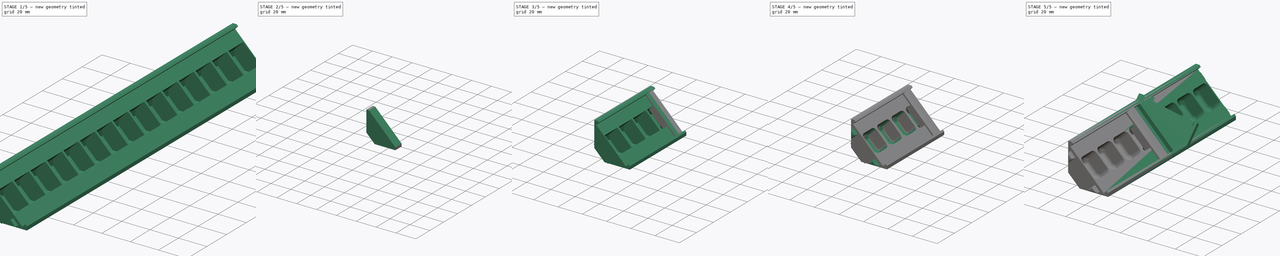
[diagram: build sequence overview — one tinted view per stage of 5, left to right]
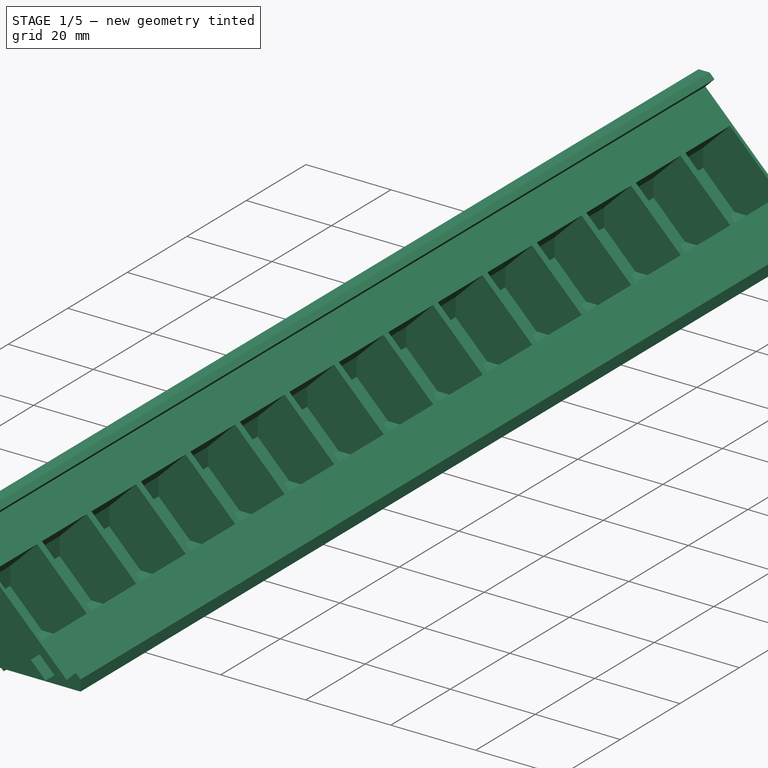
[diagram: stage 1 of 5 — iso view after this stage's code; geometry added in this stage tinted green]
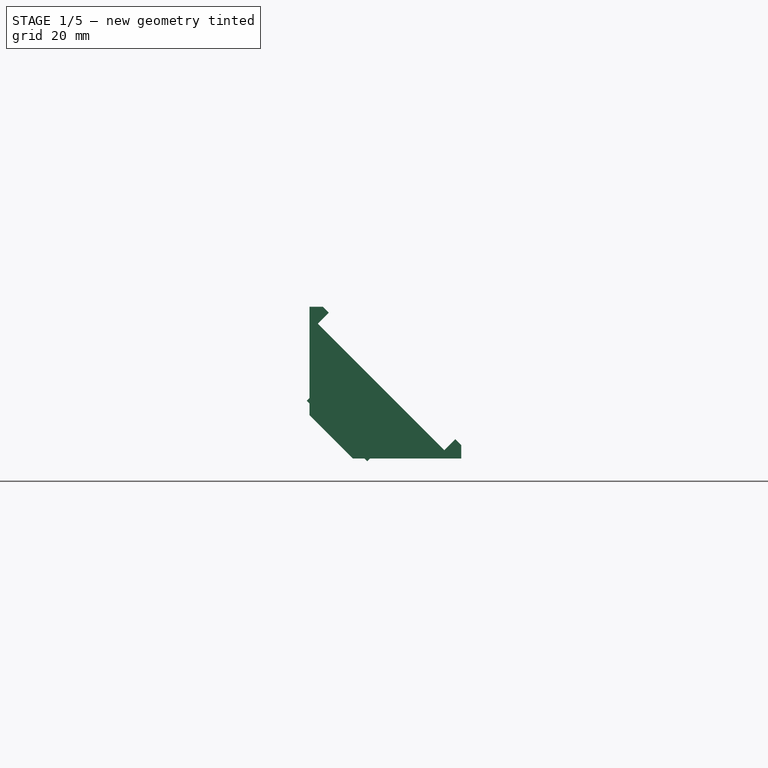
[diagram: stage 1 of 5 — front view after this stage's code; geometry added in this stage tinted green]
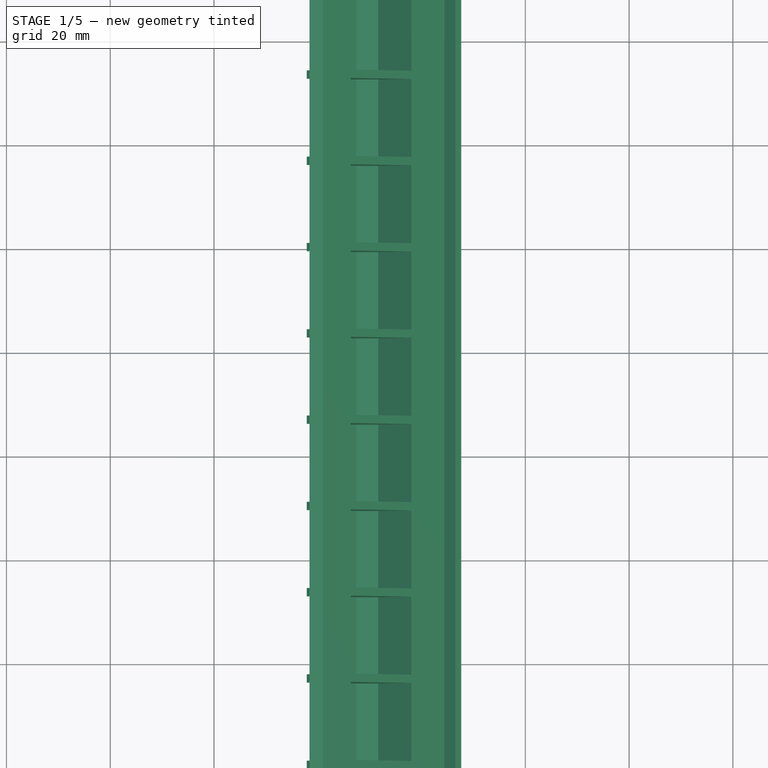
[diagram: stage 1 of 5 — top view after this stage's code; geometry added in this stage tinted green]
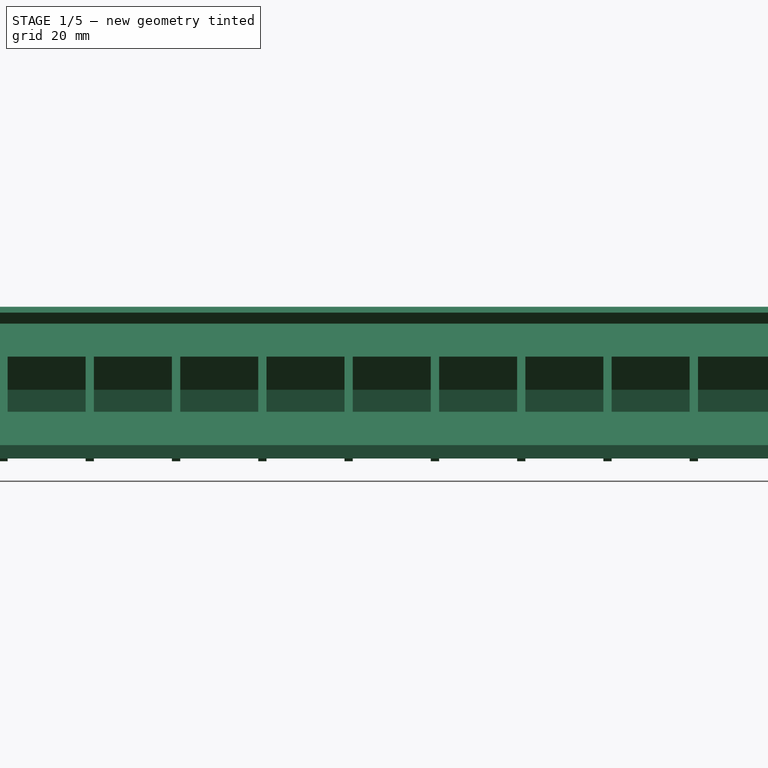
[diagram: stage 1 of 5 — right view after this stage's code; geometry added in this stage tinted green]
FCSTD DOCUMENT  (FreeCAD 1.1R20260325 (Git shallow))
Label: led-strip-mount-and-bracket-v2
License: All rights reserved
objects: Sketcher::SketchObject×19, PartDesign::Pad×10, PartDesign::Pocket×9, PartDesign::Chamfer×8, PartDesign::LinearPattern×6, App::Point×4, PartDesign::Body×4, Spreadsheet::Sheet×2, PartDesign::SubShapeBinder×2, PartDesign::Mirrored×2, PartDesign::Fillet×2, PartDesign::Plane×1
note: 148 computed .brp shape members not serialized (recipe doc carries the construction recipe); baked Part::Feature solids carry a one-line shape summary decoded from their .brp

FEATURE [Spreadsheet::Sheet] Spreadsheet  label="globals"
  cells = A1='Inner Wall Thickness; B1(inner_wall_thickness)==1.6 mm; A2='Outer Wall Thickness; B2(outer_wall_thickness)==3.2 mm; A3='Gap; B3(gap)==0.2 mm; A4='LED Cell Width; B4(led_cell_width)==16.63 mm; A5='LED Count; B5(led_count)=15
FEATURE [Sketcher::SketchObject] Sketch
  ArcFitTolerance = 1e-06
  AttachmentSupport = -> [XZ_Plane]
  ExternalTypes = [0]
  FullyConstrained = true
  MakeInternals = false
  MapMode = 5
  Placement = pos=(0,0,0) rot=(1,0,0;1.5708rad)
  _ExternalGeoVersion = 0
  expr: Constraints[49] = <<globals>>.inner_wall_thickness
  expr: Constraints[50] = <<globals>>.inner_wall_thickness
  expr: Constraints[56] = <<globals>>.inner_wall_thickness
  sketch-geometry (21):
    g0: LineSegment StartX=0 StartY=11.6673 StartZ=0 EndX=0 EndY=7.42462 EndZ=0
    g1: GeomPoint [constr] X=0 Y=0 Z=0
    g2: LineSegment StartX=7.42462 StartY=-9e-16 StartZ=0 EndX=11.6673 EndY=-9e-16 EndZ=0
    g3: LineSegment StartX=-1.6 StartY=27.6479 StartZ=0 EndX=-1.6 EndY=6.76188 EndZ=0
    g4: LineSegment StartX=6.76188 StartY=-1.6 StartZ=0 EndX=27.6479 EndY=-1.6 EndZ=0
    g5: LineSegment StartX=0 StartY=7.42462 StartZ=0 EndX=7.42462 EndY=-9e-16 EndZ=0
    g6: LineSegment [constr] StartX=0 StartY=24.3952 StartZ=0 EndX=24.3952 EndY=0 EndZ=0
    g7: LineSegment [constr] StartX=0 StartY=24.3952 StartZ=0 EndX=2.12132 EndY=26.5165 EndZ=0
    g8: LineSegment [constr] StartX=2.12132 StartY=26.5165 StartZ=0 EndX=26.5165 EndY=2.12132 EndZ=0
    g9: LineSegment [constr] StartX=26.5165 StartY=2.12132 StartZ=0 EndX=24.3952 EndY=0 EndZ=0
    g10: LineSegment StartX=2.12132 StartY=26.5165 StartZ=0 EndX=0.989949 EndY=27.6479 EndZ=0
    g11: LineSegment StartX=0.989949 StartY=27.6479 StartZ=0 EndX=-1.6 EndY=27.6479 EndZ=0
    g12: LineSegment StartX=0 StartY=24.3952 StartZ=0 EndX=2.12132 EndY=26.5165 EndZ=0
    g13: LineSegment StartX=0 StartY=11.6673 StartZ=0 EndX=6.36396 EndY=18.0312 EndZ=0
    g14: LineSegment StartX=0 StartY=24.3952 StartZ=0 EndX=6.36396 EndY=18.0312 EndZ=0
    g15: LineSegment StartX=11.6673 StartY=-9e-16 StartZ=0 EndX=18.0312 EndY=6.36396 EndZ=0
    g16: LineSegment StartX=18.0312 StartY=6.36396 StartZ=0 EndX=24.3952 EndY=0 EndZ=0
    g17: LineSegment StartX=24.3952 StartY=0 StartZ=0 EndX=26.5165 EndY=2.12132 EndZ=0
    g18: LineSegment StartX=26.5165 StartY=2.12132 StartZ=0 EndX=27.6479 EndY=0.989949 EndZ=0
    g19: LineSegment StartX=27.6479 StartY=0.989949 StartZ=0 EndX=27.6479 EndY=-1.6 EndZ=0
    g20: LineSegment StartX=-1.6 StartY=6.76188 StartZ=0 EndX=6.76188 EndY=-1.6 EndZ=0
  constraints (57):
    c: Vertical(g0)
    c: Coincident(g1,g-1)
    c: Horizontal(g2)
    c: Vertical(g3)
    c: Horizontal(g4)
    c: Distance(g3,g0) = 1.6
    c: Distance(g4,g2) = 1.6
    c: Coincident(g0,g5)
    c: Coincident(g2,g5)
    c: Angle(g5,g-2,g0) = 2.35619
    c: PointOnObject(g2,g-1)
    c: PointOnObject(g0,g-2)
    c: Distance(g5,g5) = 10.5
    c: Parallel(g6,g5)
    c: Coincident(g6,g7)
    c: Coincident(g7,g8)
    c: Coincident(g8,g9)
    c: Coincident(g9,g6)
    c: Distance(g7,g7) = 3
    c: Equal(g7,g9)
    c: Equal(g8,g6)
    c: Angle(g7,g-2,g6) = 0.785398
    c: Distance(g5,g6) = 12
    c: Coincident(g10,g11)
    c: Horizontal(g11)
    c: Coincident(g3,g11)
    c: Parallel(g10,g8)
    c: Coincident(g12,g10)
    c: Coincident(g10,g7)
    c: Coincident(g13,g0)
    c: PointOnObject(g13,g6)
    c: Coincident(g14,g12)
    c: Coincident(g14,g13)
    c: Perpendicular(g14,g13)
    c: Coincident(g12,g6)
    c: PointOnObject(g6,g-2)
    c: Coincident(g2,g15)
    c: PointOnObject(g15,g6)
    c: Coincident(g15,g16)
    c: PointOnObject(g16,g-1)
    c: Coincident(g16,g17)
    c: Coincident(g17,g8)
    c: Coincident(g17,g18)
    c: Coincident(g18,g19)
    c: Vertical(g19)
    c: Coincident(g19,g4)
    c: Coincident(g6,g16)
    c: Perpendicular(g15,g16)
    c: Parallel(g8,g18)
    c: Distance(g18,g18) = 1.6
    c: Distance(g10,g10) = 1.6
    c: Coincident(g20,g3)
    c: Coincident(g20,g4)
    c: Parallel(g5,g20)
    c: Distance(g15,g13) = 16.5
    c: Equal(g14,g16)
    c: Distance(g20,g5) = 1.6
FEATURE [PartDesign::Pad] Pad  label="basic-bracket"
  Direction = (0,-1,2e-16)
  Length = 249.45
  Length2 = 10
  Placement = pos=(0,0,0) rot=(1,0,0;1.5708rad)
  Profile = -> Sketch
  ReferenceAxis = -> Sketch [N_Axis]
  Refine = true
  SideType = 0
  Suppressed = false
  Type = 0
  Type2 = 0
  expr: Length = <<globals>>.led_cell_width * <<globals>>.led_count
FEATURE [Sketcher::SketchObject] Sketch048
  ArcFitTolerance = 1e-06
  ExternalGeometry = -> [Pad]
  ExternalTypes = [0,0,0,0]
  FullyConstrained = true
  MakeInternals = false
  MapMode = 5
  Placement = pos=(12.1976,2.7e-15,12.1976) rot=(0.382683,0,0.92388;3.14159rad)
  _ExternalGeoVersion = 1
  expr: Constraints[30] = <<globals>>.led_cell_width
  sketch-geometry (11):
    g0: LineSegment StartX=8.25 StartY=0 StartZ=0 EndX=8.25 EndY=0.8 EndZ=0
    g1: LineSegment StartX=8.25 StartY=0.8 StartZ=0 EndX=-8.25 EndY=0.8 EndZ=0
    g2: LineSegment StartX=-8.25 StartY=0.8 StartZ=0 EndX=-8.25 EndY=0 EndZ=0
    g3: LineSegment StartX=-8.25 StartY=0 StartZ=0 EndX=8.25 EndY=0 EndZ=0
    g4: LineSegment [constr] StartX=8.25 StartY=0.8 StartZ=0 EndX=8.25 EndY=15.83 EndZ=0
    g5: LineSegment StartX=8.25 StartY=15.83 StartZ=0 EndX=8.25 EndY=16.63 EndZ=0
    g6: LineSegment StartX=8.25 StartY=16.63 StartZ=0 EndX=-8.25 EndY=16.63 EndZ=0
    g7: LineSegment StartX=-8.25 StartY=16.63 StartZ=0 EndX=-8.25 EndY=15.83 EndZ=0
    g8: LineSegment StartX=-8.25 StartY=15.83 StartZ=0 EndX=8.25 EndY=15.83 EndZ=0
    g9: LineSegment [constr] StartX=8.25 StartY=16.63 StartZ=0 EndX=17.25 EndY=16.63 EndZ=0
    g10: LineSegment [constr] StartX=-8.25 StartY=15.83 StartZ=0 EndX=-8.25 EndY=0.8 EndZ=0
  constraints (31):
    c: Coincident(g0,g1)
    c: Coincident(g1,g2)
    c: Coincident(g2,g3)
    c: Coincident(g3,g0)
    c: Vertical(g0)
    c: Vertical(g2)
    c: Horizontal(g1)
    c: Horizontal(g3)
    c: DistanceY(g0,g0) = 0.8
    c: Coincident(g4,g0)
    c: Coincident(g5,g6)
    c: Coincident(g6,g7)
    c: Coincident(g7,g8)
    c: Coincident(g8,g5)
    c: Vertical(g5)
    c: Vertical(g7)
    c: Horizontal(g6)
    c: Horizontal(g8)
    c: Coincident(g5,g4)
    c: Equal(g0,g5)
    c: Coincident(g9,g5)
    c: PointOnObject(g9,g-3)
    c: Horizontal(g9)
    c: DistanceX(g9,g9) = 9
    c: DistanceX(g6,g6) = 16.5
    c: PointOnObject(g0,g-1)
    c: Coincident(g10,g7)
    c: Coincident(g10,g1)
    c: Parallel(g7,g10)
    c: Parallel(g5,g4)
    c: Distance(g3,g6) = 16.63
FEATURE [PartDesign::Pad] Pad003  label="divider-wall"
  BaseFeature = -> Pad
  Direction = (0.707107,0,0.707107)
  Length = 1.6
  Length2 = 10
  Placement = pos=(0,0,0) rot=(1,0,0;1.5708rad)
  Profile = -> Sketch048
  ReferenceAxis = -> Sketch048 [N_Axis]
  Refine = true
  Reversed = true
  SideType = 0
  Suppressed = false
  Type = 2
  Type2 = 0
FEATURE [PartDesign::LinearPattern] LinearPattern001  label="wall-repeat"
  BaseFeature = -> Pad003
  Direction = -> Y_Axis
  Direction2 = -> Sketch048 [H_Axis]
  Length = 232.82
  Length2 = 100
  Mode = 1
  Mode2 = 0
  Occurrences = 15
  Occurrences2 = 1
  Offset = 16.63
  Offset2 = 100
  Originals = -> [Pad003]
  Placement = pos=(0,0,0) rot=(1,0,0;1.5708rad)
  Refine = true
  Reversed = true
  Reversed2 = false
  SpacingPattern = [16.63]
  SpacingPattern2 = [0]
  Spacings = [-1,-1,-1,-1,-1,-1,-1,-1,-1,-1,-1,-1,-1,-1]
  Suppressed = false
  TransformMode = 0
  expr: Occurrences = <<globals>>.led_count
  expr: Offset = <<globals>>.led_cell_width
FEATURE [Sketcher::SketchObject] Sketch005
  ArcFitTolerance = 1e-06
  ExternalGeometry = -> [LinearPattern001]
  ExternalTypes = [0,0]
  FullyConstrained = true
  MakeInternals = false
  MapMode = 5
  Placement = pos=(3.71231,8e-16,3.71231) rot=(0.382683,0,0.92388;3.14159rad)
  _ExternalGeoVersion = 0
  sketch-geometry (8):
    g0: LineSegment StartX=-2.7 StartY=11.015 StartZ=0 EndX=-2.7 EndY=5.615 EndZ=0
    g1: LineSegment StartX=-2.7 StartY=5.615 StartZ=0 EndX=2.7 EndY=5.615 EndZ=0
    g2: LineSegment StartX=2.7 StartY=5.615 StartZ=0 EndX=2.7 EndY=11.015 EndZ=0
    g3: LineSegment StartX=2.7 StartY=11.015 StartZ=0 EndX=-2.7 EndY=11.015 EndZ=0
    g4: LineSegment [constr] StartX=-2.7 StartY=11.015 StartZ=0 EndX=-5.25 EndY=15.83 EndZ=0
    g5: LineSegment [constr] StartX=2.7 StartY=5.615 StartZ=0 EndX=5.25 EndY=0.8 EndZ=0
    g6: LineSegment [constr] StartX=2.7 StartY=11.015 StartZ=0 EndX=5.25 EndY=15.83 EndZ=0
    g7: LineSegment [constr] StartX=-2.7 StartY=5.615 StartZ=0 EndX=-5.25 EndY=0.8 EndZ=0
  constraints (20):
    c: Coincident(g0,g1)
    c: Coincident(g1,g2)
    c: Coincident(g2,g3)
    c: Coincident(g3,g0)
    c: Vertical(g0)
    c: Vertical(g2)
    c: Horizontal(g1)
    c: Horizontal(g3)
    c: DistanceX(g3,g3) = 5.4
    c: Equal(g3,g0)
    c: Coincident(g4,g0)
    c: Coincident(g5,g1)
    c: Coincident(g6,g2)
    c: Coincident(g7,g0)
    c: Equal(g4,g7)
    c: Coincident(g7,g-3)
    c: Coincident(g5,g-4)
    c: Coincident(g4,g-3)
    c: Coincident(g-4,g6)
    c: Equal(g7,g6)
FEATURE [PartDesign::Pocket] Pocket  label="led-enclosure"
  BaseFeature = -> LinearPattern001
  Direction = (-0.707107,0,-0.707107)
  Length = 5
  Length2 = 5
  Placement = pos=(0,0,0) rot=(1,0,0;1.5708rad)
  Profile = -> Sketch005
  ReferenceAxis = -> Sketch005 [N_Axis]
  Refine = true
  SideType = 0
  Suppressed = false
  Type = 1
  Type2 = 0
FEATURE [PartDesign::LinearPattern] LinearPattern  label="led-enclosure-linear-pattern"
  BaseFeature = -> Pocket
  Direction = -> Y_Axis
  Direction2 = -> Sketch005 [H_Axis]
  Length = 232.82
  Length2 = 100
  Mode = 1
  Mode2 = 0
  Occurrences = 15
  Occurrences2 = 1
  Offset = 16.63
  Offset2 = 100
  Originals = -> [Pocket]
  Placement = pos=(0,0,0) rot=(1,0,0;1.5708rad)
  Refine = true
  Reversed = true
  Reversed2 = false
  SpacingPattern = [16.63]
  SpacingPattern2 = [0]
  Spacings = [-1,-1,-1,-1,-1,-1,-1,-1,-1,-1,-1,-1,-1,-1]
  Suppressed = false
  TransformMode = 0
  expr: Occurrences = <<globals>>.led_count
  expr: Offset = <<globals>>.led_cell_width
FEATURE [PartDesign::Pocket] Pocket001  label="mating-hole"
  BaseFeature = -> LinearPattern
  Direction = (0,-1,-2e-16)
  Length = 4
  Length2 = 5
  Placement = pos=(0,0,0) rot=(1,0,0;1.5708rad)
  Profile = -> Sketch006
  ReferenceAxis = -> Sketch006 [N_Axis]
  Refine = true
  SideType = 0
  Suppressed = false
  Type = 0
  Type2 = 0
FEATURE [PartDesign::Pad] Pad004  label="mating-pin"
  BaseFeature = -> Pocket001
  Direction = (0,-1,2e-16)
  Length = 3
  Length2 = 10
  Placement = pos=(0,0,0) rot=(1,0,0;1.5708rad)
  Profile = -> Sketch007
  ReferenceAxis = -> Sketch007 [N_Axis]
  Refine = true
  SideType = 0
  Suppressed = false
  Type = 0
  Type2 = 0
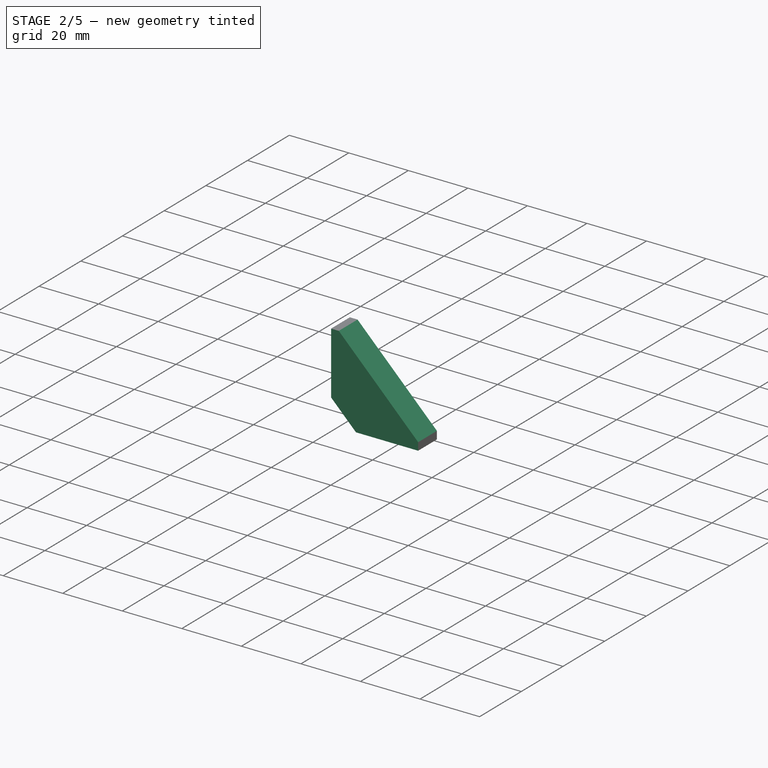
[diagram: stage 2 of 5 — iso view after this stage's code; geometry added in this stage tinted green]
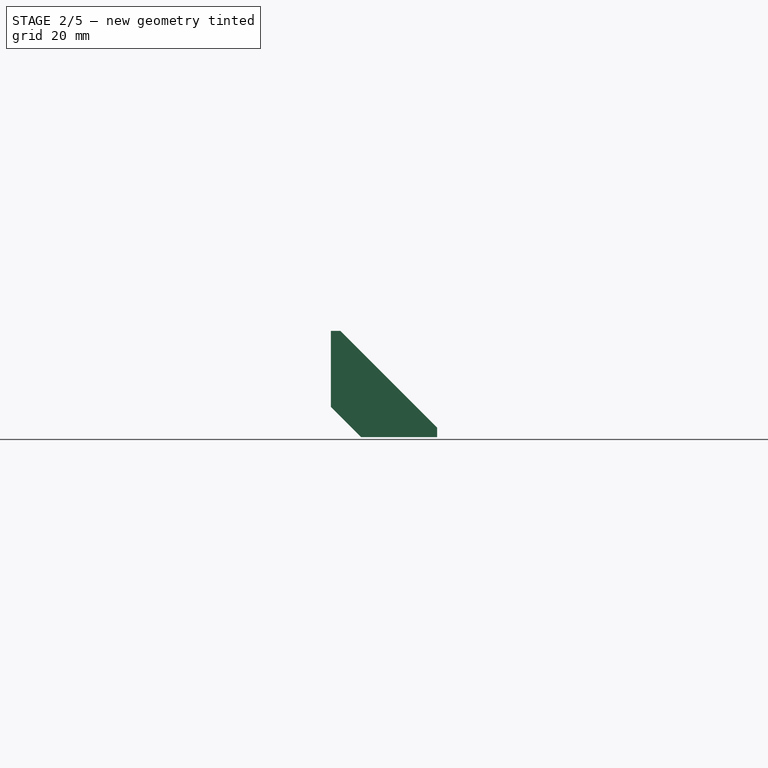
[diagram: stage 2 of 5 — front view after this stage's code; geometry added in this stage tinted green]
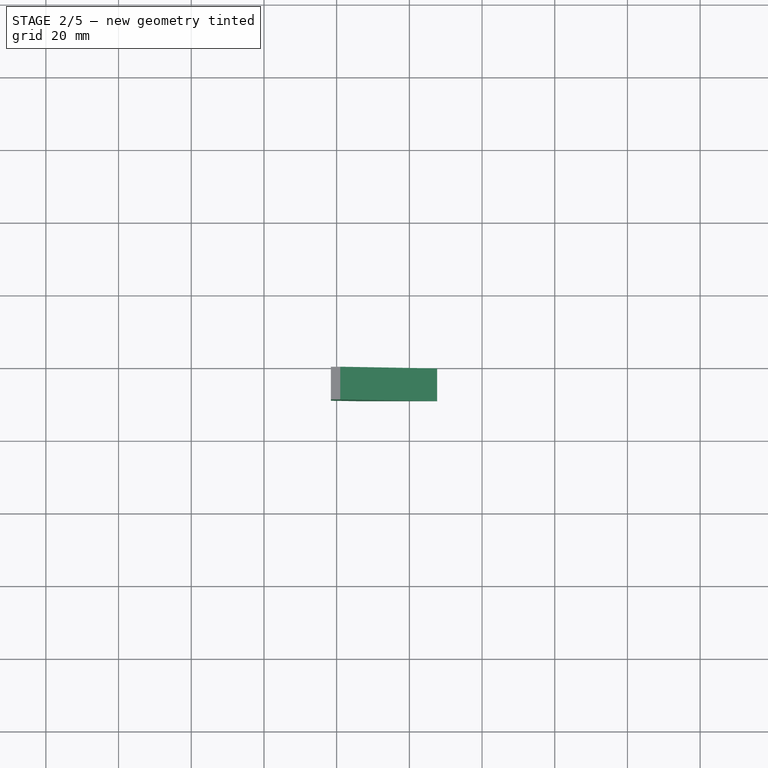
[diagram: stage 2 of 5 — top view after this stage's code; geometry added in this stage tinted green]
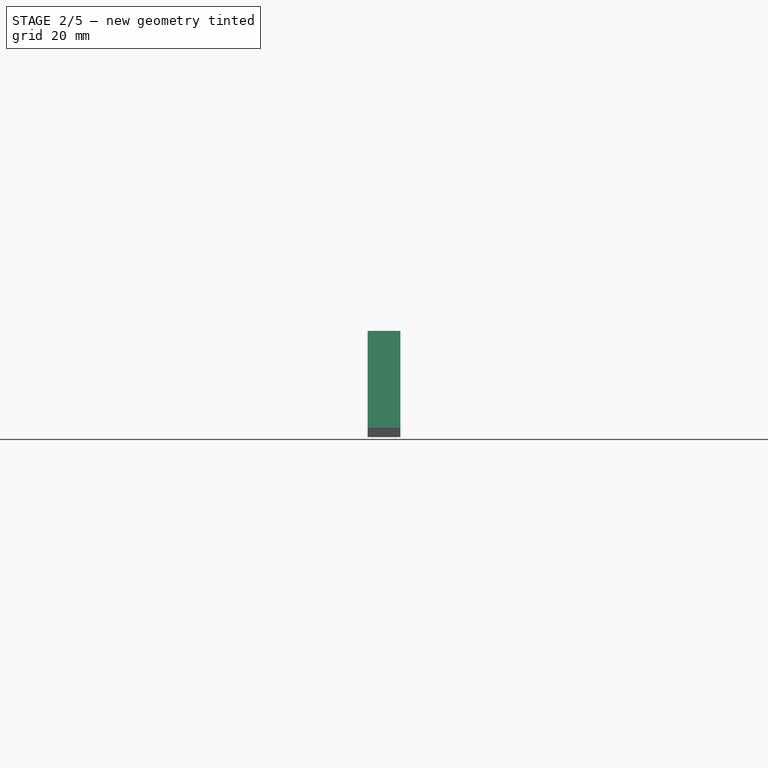
[diagram: stage 2 of 5 — right view after this stage's code; geometry added in this stage tinted green]
FEATURE [Sketcher::SketchObject] Sketch006
  ArcFitTolerance = 1e-06
  AttachmentSupport = -> [Pad]
  ExternalGeometry = -> [Pad]
  ExternalTypes = [0]
  FullyConstrained = true
  MakeInternals = false
  MapMode = 5
  Placement = pos=(0,1.8e-15,0) rot=(-1,0,0;1.5708rad)
  _ExternalGeoVersion = 0
  expr: Constraints[16] = <<globals>>.inner_wall_thickness
  expr: Constraints[17] = <<globals>>.inner_wall_thickness
  expr: Constraints[7] = <<globals>>.inner_wall_thickness
  expr: Constraints[8] = <<globals>>.inner_wall_thickness
  sketch-geometry (6):
    g0: LineSegment StartX=0 StartY=-13.93 StartZ=0 EndX=4.10122 EndY=-18.0312 EndZ=0
    g1: LineSegment StartX=4.10122 StartY=-18.0312 StartZ=0 EndX=0 EndY=-22.1324 EndZ=0
    g2: LineSegment StartX=0 StartY=-22.1324 StartZ=0 EndX=0 EndY=-13.93 EndZ=0
    g3: LineSegment StartX=13.93 StartY=0 StartZ=0 EndX=18.0312 EndY=-4.10122 EndZ=0
    g4: LineSegment StartX=18.0312 StartY=-4.10122 StartZ=0 EndX=22.1324 EndY=0 EndZ=0
    g5: LineSegment StartX=22.1324 StartY=0 StartZ=0 EndX=13.93 EndY=0 EndZ=0
  constraints (18):
    c: PointOnObject(g0,g-2)
    c: Coincident(g0,g1)
    c: PointOnObject(g1,g-2)
    c: Coincident(g1,g2)
    c: Coincident(g2,g0)
    c: Parallel(g-4,g0)
    c: Parallel(g1,g-3)
    c: Distance(g-4,g0) = 1.6
    c: Distance(g-3,g1) = 1.6
    c: PointOnObject(g3,g-1)
    c: Coincident(g3,g4)
    c: PointOnObject(g4,g-1)
    c: Coincident(g4,g5)
    c: Coincident(g5,g3)
    c: Parallel(g3,g-7)
    c: Parallel(g4,g-6)
    c: Distance(g3,g-7) = 1.6
    c: Distance(g-6,g4) = 1.6
FEATURE [Sketcher::SketchObject] Sketch007
  ArcFitTolerance = 1e-06
  AttachmentOffset = pos=(0,0,249.45) rot=(0,0,1;0rad)
  AttachmentSupport = -> [XZ_Plane001]
  ExternalTypes = [0]
  FullyConstrained = true
  MakeInternals = false
  MapMode = 5
  Placement = pos=(0,-249.45,5.54e-14) rot=(1,0,0;1.5708rad)
  _ExternalGeoVersion = 0
  expr: .AttachmentOffset.Base.z = <<globals>>.led_cell_width * <<globals>>.led_count
  expr: Constraints[14] = <<globals>>.inner_wall_thickness
  expr: Constraints[15] = <<globals>>.inner_wall_thickness
  expr: Constraints[16] = <<globals>>.inner_wall_thickness
  expr: Constraints[17] = <<globals>>.inner_wall_thickness
  expr: Constraints[30] = <<globals>>.gap * 5 / 4
  expr: Constraints[31] = <<globals>>.gap * 5 / 4
  expr: Constraints[32] = <<globals>>.gap * 5 / 4
  expr: Constraints[33] = <<globals>>.gap * 5 / 4
  expr: Constraints[34] = <<globals>>.gap * 5 / 4
  expr: Constraints[35] = <<globals>>.gap * 5 / 4
  sketch-geometry (12):
    g0: LineSegment [constr] StartX=0 StartY=22.1324 StartZ=0 EndX=4.10122 EndY=18.0312 EndZ=0
    g1: LineSegment [constr] StartX=4.10122 StartY=18.0312 StartZ=0 EndX=0 EndY=13.93 EndZ=0
    g2: LineSegment [constr] StartX=0 StartY=13.93 StartZ=0 EndX=0 EndY=22.1324 EndZ=0
    g3: LineSegment [constr] StartX=13.93 StartY=0 StartZ=0 EndX=18.0312 EndY=4.10122 EndZ=0
    g4: LineSegment [constr] StartX=18.0312 StartY=4.10122 StartZ=0 EndX=22.1324 EndY=0 EndZ=0
    g5: LineSegment [constr] StartX=22.1324 StartY=0 StartZ=0 EndX=13.93 EndY=0 EndZ=0
    g6: LineSegment StartX=0.25 StartY=21.5289 StartZ=0 EndX=0.25 EndY=14.5336 EndZ=0
    g7: LineSegment StartX=0.25 StartY=14.5336 StartZ=0 EndX=3.74767 EndY=18.0312 EndZ=0
    g8: LineSegment StartX=3.74767 StartY=18.0312 StartZ=0 EndX=0.25 EndY=21.5289 EndZ=0
    g9: LineSegment StartX=14.5336 StartY=0.25 StartZ=0 EndX=18.0312 EndY=3.74767 EndZ=0
    g10: LineSegment StartX=18.0312 StartY=3.74767 StartZ=0 EndX=21.5289 EndY=0.25 EndZ=0
    g11: LineSegment StartX=21.5289 StartY=0.25 StartZ=0 EndX=14.5336 EndY=0.25 EndZ=0
  constraints (36):
    c: PointOnObject(g0,g-2)
    c: Coincident(g0,g1)
    c: Coincident(g1,g2)
    c: Coincident(g2,g0)
    c: Vertical(g2)
    c: PointOnObject(g3,g-1)
    c: Coincident(g3,g4)
    c: PointOnObject(g4,g-1)
    c: Coincident(g4,g5)
    c: Coincident(g5,g3)
    c: Parallel(g-3,g0)
    c: Parallel(g-4,g1)
    c: Parallel(g3,g-5)
    c: Parallel(g4,g-6)
    c: Distance(g-3,g0) = 1.6
    c: Distance(g-4,g1) = 1.6
    c: Distance(g-5,g3) = 1.6
    c: Distance(g-6,g4) = 1.6
    c: Vertical(g6)
    c: Coincident(g6,g7)
    c: Coincident(g7,g8)
    c: Coincident(g8,g6)
    c: Coincident(g9,g10)
    c: Coincident(g10,g11)
    c: Coincident(g11,g9)
    c: Horizontal(g11)
    c: Parallel(g8,g0)
    c: Parallel(g7,g1)
    c: Parallel(g10,g4)
    c: Parallel(g9,g3)
    c: Distance(g0,g8) = 0.25
    c: Distance(g2,g6) = 0.25
    c: Distance(g1,g7) = 0.25
    c: Distance(g3,g9) = 0.25
    c: Distance(g4,g10) = 0.25
    c: Distance(g5,g11) = 0.25
FEATURE [App::Point] Origin001  label="Origin"
  Role = Origin
FEATURE [App::Point] Origin003
  Role = Origin
FEATURE [PartDesign::SubShapeBinder] Binder  label="bracker-reference-binder"
  BindCopyOnChange = 0
  BindMode = 0
  ClaimChildren = false
  Context = -> Body001 [Binder.]
  Fuse = false
  MakeFace = true
  OffsetFill = false
  OffsetIntersection = false
  OffsetJoinType = 0
  OffsetOpenResult = false
  PartialLoad = false
  Refine = true
  Relative = true
  Support = -> [Body]
  _Version = 2
FEATURE [Sketcher::SketchObject] Sketch008
  ArcFitTolerance = 1e-06
  AttachmentOffset = pos=(0,249.45,0) rot=(0,0,1;0rad)
  AttachmentSupport = -> [XZ_Plane001]
  ExternalGeometry = -> [Binder]
  ExternalTypes = [0,0,0,0,0,0,0]
  FullyConstrained = true
  MakeInternals = false
  MapMode = 5
  Placement = pos=(0,5.54e-14,249.45) rot=(1,0,0;1.5708rad)
  _ExternalGeoVersion = 1
  expr: .AttachmentOffset.Base.y = <<globals>>.led_cell_width * <<globals>>.led_count
  expr: .Placement.Base.y = -<<globals>>.led_cell_width * <<globals>>.led_count
  sketch-geometry (6):
    g0: LineSegment StartX=0.989949 StartY=-221.802 StartZ=0 EndX=27.6479 EndY=-248.46 EndZ=0
    g1: LineSegment StartX=27.6479 StartY=-248.46 StartZ=0 EndX=27.6479 EndY=-251.05 EndZ=0
    g2: LineSegment StartX=27.6479 StartY=-251.05 StartZ=0 EndX=6.76188 EndY=-251.05 EndZ=0
    g3: LineSegment StartX=6.76188 StartY=-251.05 StartZ=0 EndX=-1.6 EndY=-242.688 EndZ=0
    g4: LineSegment StartX=-1.6 StartY=-242.688 StartZ=0 EndX=-1.6 EndY=-221.802 EndZ=0
    g5: LineSegment StartX=-1.6 StartY=-221.802 StartZ=0 EndX=0.989949 EndY=-221.802 EndZ=0
  constraints (12):
    c: Coincident(g0,g-4)
    c: Coincident(g0,g-5)
    c: Coincident(g0,g1)
    c: Coincident(g1,g-6)
    c: Coincident(g1,g2)
    c: Coincident(g2,g-7)
    c: Coincident(g2,g3)
    c: Coincident(g3,g-8)
    c: Coincident(g3,g4)
    c: Coincident(g4,g-3)
    c: Coincident(g4,g5)
    c: Coincident(g5,g0)
FEATURE [PartDesign::Pad] Pad005  label="endcap-shape"
  Direction = (0,-1,2e-16)
  Length = 9
  Length2 = 10
  Placement = pos=(0,0,0) rot=(1,0,0;1.5708rad)
  Profile = -> Sketch008
  ReferenceAxis = -> Sketch008 [N_Axis]
  Refine = true
  SideType = 0
  Suppressed = false
  Type = 0
  Type2 = 0
FEATURE [Sketcher::SketchObject] Sketch009
  ArcFitTolerance = 1e-06
  AttachmentSupport = -> [Pad005]
  ExternalGeometry = -> [Binder]
  ExternalTypes = [0,0,0,0,0,0]
  FullyConstrained = true
  MakeInternals = false
  MapMode = 5
  Placement = pos=(0,2.2e-15,0) rot=(-1,0,0;1.5708rad)
  _ExternalGeoVersion = 1
  sketch-geometry (6):
    g0: LineSegment StartX=22.1324 StartY=5.6e-14 StartZ=0 EndX=18.0312 EndY=-4.10122 EndZ=0
    g1: LineSegment StartX=18.0312 StartY=-4.10122 StartZ=0 EndX=13.93 EndY=5.6e-14 EndZ=0
    g2: LineSegment StartX=13.93 StartY=5.6e-14 StartZ=0 EndX=22.1324 EndY=5.6e-14 EndZ=0
    g3: LineSegment StartX=0 StartY=-22.1324 StartZ=0 EndX=9e-16 EndY=-13.93 EndZ=0
    g4: LineSegment StartX=9e-16 StartY=-13.93 StartZ=0 EndX=4.10122 EndY=-18.0312 EndZ=0
    g5: LineSegment StartX=4.10122 StartY=-18.0312 StartZ=0 EndX=0 EndY=-22.1324 EndZ=0
  constraints (12):
    c: Coincident(g0,g1)
    c: Coincident(g1,g2)
    c: Coincident(g2,g0)
    c: Coincident(g3,g4)
    c: Coincident(g4,g5)
    c: Coincident(g5,g3)
    c: Coincident(g3,g-4)
    c: Coincident(g4,g-5)
    c: Coincident(g3,g-5)
    c: Coincident(g0,g-8)
    c: Coincident(g0,g-7)
    c: Coincident(g1,g-8)
FEATURE [PartDesign::Pocket] Pocket002  label="endcap-mating-hole"
  BaseFeature = -> Pad005
  Direction = (0,-1,-2e-16)
  Length = 4
  Length2 = 5
  Placement = pos=(0,0,0) rot=(1,0,0;1.5708rad)
  Profile = -> Sketch009
  ReferenceAxis = -> Sketch009 [N_Axis]
  Refine = true
  SideType = 0
  Suppressed = false
  Type = 0
  Type2 = 0
FEATURE [PartDesign::Chamfer] Chamfer002  label="endcap-mating-hole-chamfer"
  Angle = 45
  Base = -> Pocket002 [Edge17,Edge19,Edge18,Edge16,Edge14,Edge15]
  BaseFeature = -> Pocket002
  ChamferType = 0
  FlipDirection = false
  Placement = pos=(0,0,0) rot=(1,0,0;1.5708rad)
  Refine = true
  Size = 0.8
  Size2 = 1
  SupportTransform = false
  Suppressed = false
  UseAllEdges = false
FEATURE [PartDesign::Chamfer] Chamfer  label="mating-pin-chamfer"
  Angle = 45
  Base = -> Pad004 [Edge513,Edge514,Edge511,Edge508,Edge507,Edge505]
  BaseFeature = -> Pad004
  ChamferType = 0
  FlipDirection = false
  Placement = pos=(0,0,0) rot=(1,0,0;1.5708rad)
  Refine = true
  Size = 0.6
  Size2 = 1
  SupportTransform = false
  Suppressed = false
  UseAllEdges = false
FEATURE [PartDesign::Chamfer] Chamfer001  label="mating-hole-chamfer"
  Angle = 45
  Base = -> Chamfer [Edge318,Edge317,Edge319,Edge320,Edge321,Edge322]
  BaseFeature = -> Chamfer
  ChamferType = 0
  FlipDirection = false
  Placement = pos=(0,0,0) rot=(1,0,0;1.5708rad)
  Refine = true
  Size = 0.8
  Size2 = 1
  SupportTransform = false
  Suppressed = false
  UseAllEdges = false
FEATURE [PartDesign::Body] Body004  label="endcap-joint"
  AllowCompound = false
  Group = -> [Binder002,Sketch031,Pad012,Pad019,Sketch033,Pad014,Chamfer006,DatumPlane,Mirrored,Sketch051]
  Origin = -> Origin008
  Tip = -> Mirrored
FEATURE [PartDesign::Fillet] Fillet
  Base = -> Chamfer001 [Edge492,Edge493,Edge500,Edge815,Edge501,Edge491,Edge497,Edge496,Edge498,Edge499,Edge502,Edge816,Edge495,Edge494]
  BaseFeature = -> Chamfer001
  Placement = pos=(0,0,0) rot=(1,0,0;1.5708rad)
  Radius = 3
  Refine = true
  SupportTransform = false
  Suppressed = false
  UseAllEdges = false
FEATURE [PartDesign::LinearPattern] LinearPattern002
  BaseFeature = -> Fillet
  Direction = -> Y_Axis
  Direction2 = -> X_Axis
  Length = 232.82
  Length2 = 100
  Mode = 0
  Mode2 = 0
  Occurrences = 15
  Occurrences2 = 1
  Offset = 16.63
  Offset2 = 100
  Originals = -> [Fillet]
  Placement = pos=(0,0,0) rot=(1,0,0;1.5708rad)
  Refine = true
  Reversed = true
  Reversed2 = false
  SpacingPattern = [0]
  SpacingPattern2 = [0]
  Spacings = [-1,-1,-1,-1,-1,-1,-1,-1,-1,-1,-1,-1,-1,-1]
  Suppressed = false
  TransformMode = 0
  expr: Length = <<globals>>.led_cell_width * (<<globals>>.led_count - 1)
  expr: Occurrences = <<globals>>.led_count
FEATURE [Sketcher::SketchObject] Sketch052
  ArcFitTolerance = 1e-06
  AttachmentSupport = -> [Origin]
  ExternalTypes = [0,0,0,0]
  FullyConstrained = true
  MakeInternals = false
  MapMode = 5
  Placement = pos=(0,0,0) rot=(1,0,0;1.5708rad)
  _ExternalGeoVersion = 1
  sketch-geometry (6):
    g0: LineSegment StartX=-1.6 StartY=10.0673 StartZ=0 EndX=-1.6 EndY=9.02462 EndZ=0
    g1: LineSegment StartX=-1.6 StartY=9.02462 StartZ=0 EndX=-2.12132 EndY=9.54594 EndZ=0
    g2: LineSegment StartX=-2.12132 StartY=9.54594 StartZ=0 EndX=-1.6 EndY=10.0673 EndZ=0
    g3: LineSegment StartX=9.02462 StartY=-1.6 StartZ=0 EndX=10.0673 EndY=-1.6 EndZ=0
    g4: LineSegment StartX=10.0673 StartY=-1.6 StartZ=0 EndX=9.54594 EndY=-2.12132 EndZ=0
    g5: LineSegment StartX=9.54594 StartY=-2.12132 StartZ=0 EndX=9.02462 EndY=-1.6 EndZ=0
  constraints (12):
    c: Coincident(g-3,g0)
    c: Coincident(g0,g-4)
    c: Coincident(g0,g1)
    c: Coincident(g1,g-4)
    c: Coincident(g1,g2)
    c: Coincident(g2,g0)
    c: Coincident(g-5,g3)
    c: Coincident(g3,g-6)
    c: Coincident(g3,g4)
    c: Coincident(g4,g-6)
    c: Coincident(g4,g5)
    c: Coincident(g5,g3)
FEATURE [PartDesign::Pocket] Pocket009
  BaseFeature = -> LinearPattern002
  Direction = (0,1,-2e-16)
  Length = 81
  Length2 = 5
  Placement = pos=(0,0,0) rot=(1,0,0;1.5708rad)
  Profile = -> Sketch052
  ReferenceAxis = -> Sketch052 [N_Axis]
  Refine = true
  Reversed = true
  SideType = 0
  Suppressed = false
  Type = 1
  Type2 = 0
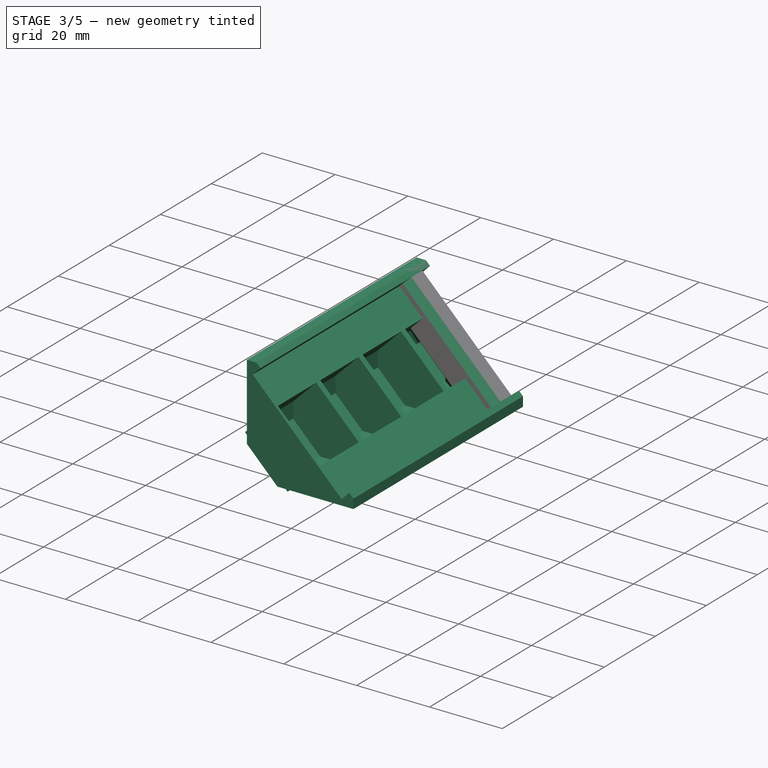
[diagram: stage 3 of 5 — iso view after this stage's code; geometry added in this stage tinted green]
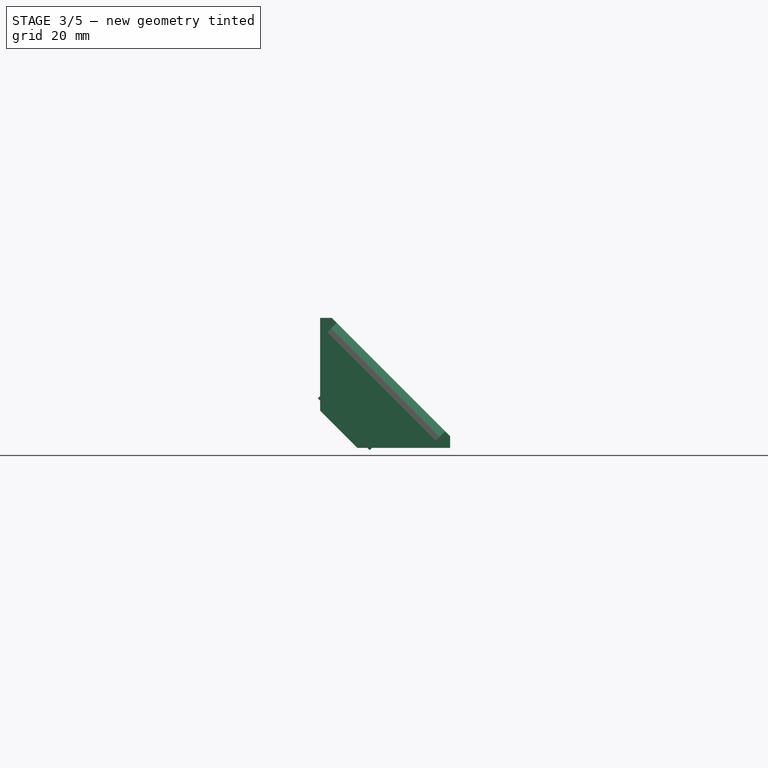
[diagram: stage 3 of 5 — front view after this stage's code; geometry added in this stage tinted green]
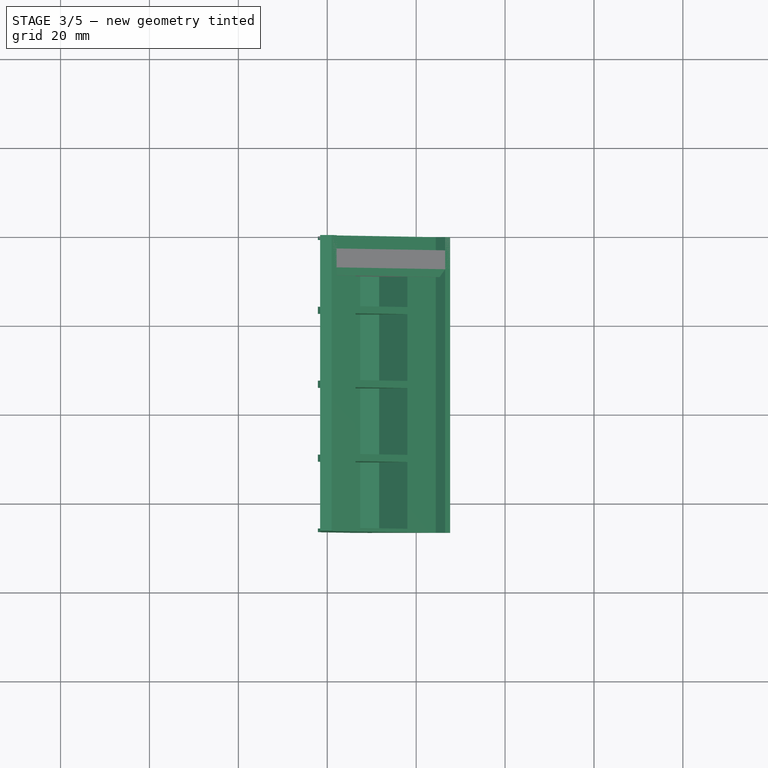
[diagram: stage 3 of 5 — top view after this stage's code; geometry added in this stage tinted green]
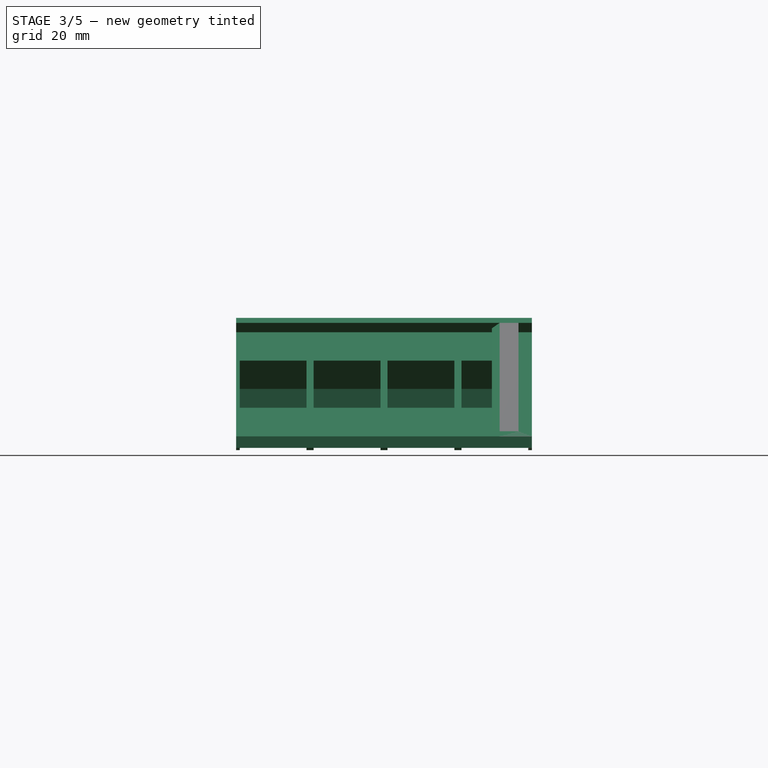
[diagram: stage 3 of 5 — right view after this stage's code; geometry added in this stage tinted green]
FEATURE [Sketcher::SketchObject] Sketch050
  ArcFitTolerance = 1e-06
  AttachmentOffset = pos=(0,249.45,0) rot=(0,0,1;0rad)
  AttachmentSupport = -> [XZ_Plane]
  ExternalGeometry = -> [Binder]
  ExternalTypes = [0,0]
  FullyConstrained = true
  MakeInternals = false
  MapMode = 5
  Placement = pos=(0,5.54e-14,249.45) rot=(1,0,0;1.5708rad)
  _ExternalGeoVersion = 1
  expr: .AttachmentOffset.Base.y = <<globals>>.led_cell_width * <<globals>>.led_count
  sketch-geometry (4):
    g0: LineSegment StartX=0 StartY=-225.055 StartZ=0 EndX=2.12132 EndY=-222.933 EndZ=0
    g1: LineSegment StartX=2.12132 StartY=-222.933 StartZ=0 EndX=26.5165 EndY=-247.329 EndZ=0
    g2: LineSegment StartX=26.5165 StartY=-247.329 StartZ=0 EndX=24.3952 EndY=-249.45 EndZ=0
    g3: LineSegment StartX=24.3952 StartY=-249.45 StartZ=0 EndX=0 EndY=-225.055 EndZ=0
  constraints (10):
    c: Coincident(g-3,g0)
    c: Coincident(g0,g-3)
    c: Coincident(g0,g1)
    c: Coincident(g1,g2)
    c: Coincident(g2,g3)
    c: Coincident(g3,g0)
    c: Parallel(g0,g2)
    c: Parallel(g3,g1)
    c: Distance(g1,g1) = 34.5
    c: Perpendicular(g3,g0)
FEATURE [PartDesign::Pocket] Pocket008
  BaseFeature = -> Chamfer002
  Direction = (0,1,-2e-16)
  Length = 3
  Length2 = 5
  Placement = pos=(0,0,0) rot=(1,0,0;1.5708rad)
  Profile = -> Sketch050
  ReferenceAxis = -> Sketch050 [N_Axis]
  Refine = true
  Reversed = true
  SideType = 0
  Suppressed = false
  Type = 0
  Type2 = 0
FEATURE [PartDesign::Body] Body  label="bracket"
  AllowCompound = true
  Group = -> [Sketch,Pad,Sketch048,Pad003,LinearPattern001,Sketch005,Pocket,LinearPattern,Sketch006,Pocket001,Sketch007,Pad004,Chamfer,Chamfer001,Fillet,LinearPattern002,Sketch052,Pocket009]
  Origin = -> Origin
  Tip = -> Pocket009
FEATURE [PartDesign::Chamfer] Chamfer007
  Angle = 45
  Base = -> Pocket008 [Edge25,Edge27,Edge31,Edge21,Edge19]
  BaseFeature = -> Pocket008
  ChamferType = 0
  FlipDirection = false
  Placement = pos=(0,0,0) rot=(1,0,0;1.5708rad)
  Refine = true
  Size = 1.75
  Size2 = 1
  SupportTransform = false
  Suppressed = false
  UseAllEdges = false
FEATURE [PartDesign::Chamfer] Chamfer008
  Angle = 45
  Base = -> Chamfer007 [Edge32]
  BaseFeature = -> Chamfer007
  ChamferType = 0
  FlipDirection = false
  Placement = pos=(0,0,0) rot=(1,0,0;1.5708rad)
  Refine = true
  Size = 8.99
  Size2 = 1
  SupportTransform = false
  Suppressed = false
  UseAllEdges = false
FEATURE [App::Point] Origin011  label="Origin013"
  Role = Origin
FEATURE [Sketcher::SketchObject] Sketch053
  ArcFitTolerance = 1e-06
  AttachmentSupport = -> [XZ_Plane005]
  ExternalTypes = [0]
  FullyConstrained = true
  MakeInternals = false
  MapMode = 5
  Placement = pos=(0,0,0) rot=(1,0,0;1.5708rad)
  _ExternalGeoVersion = 0
  expr: Constraints[49] = <<globals001>>.inner_wall_thickness
  expr: Constraints[50] = <<globals001>>.inner_wall_thickness
  expr: Constraints[56] = <<globals001>>.inner_wall_thickness
  sketch-geometry (21):
    g0: LineSegment StartX=0 StartY=11.6673 StartZ=0 EndX=0 EndY=7.42462 EndZ=0
    g1: GeomPoint [constr] X=0 Y=0 Z=0
    g2: LineSegment StartX=7.42462 StartY=-9e-16 StartZ=0 EndX=11.6673 EndY=-9e-16 EndZ=0
    g3: LineSegment StartX=-1.6 StartY=27.6479 StartZ=0 EndX=-1.6 EndY=6.76188 EndZ=0
    g4: LineSegment StartX=6.76188 StartY=-1.6 StartZ=0 EndX=27.6479 EndY=-1.6 EndZ=0
    g5: LineSegment StartX=0 StartY=7.42462 StartZ=0 EndX=7.42462 EndY=-9e-16 EndZ=0
    g6: LineSegment [constr] StartX=0 StartY=24.3952 StartZ=0 EndX=24.3952 EndY=0 EndZ=0
    g7: LineSegment [constr] StartX=0 StartY=24.3952 StartZ=0 EndX=2.12132 EndY=26.5165 EndZ=0
    g8: LineSegment [constr] StartX=2.12132 StartY=26.5165 StartZ=0 EndX=26.5165 EndY=2.12132 EndZ=0
    g9: LineSegment [constr] StartX=26.5165 StartY=2.12132 StartZ=0 EndX=24.3952 EndY=0 EndZ=0
    g10: LineSegment StartX=2.12132 StartY=26.5165 StartZ=0 EndX=0.989949 EndY=27.6479 EndZ=0
    g11: LineSegment StartX=0.989949 StartY=27.6479 StartZ=0 EndX=-1.6 EndY=27.6479 EndZ=0
    g12: LineSegment StartX=0 StartY=24.3952 StartZ=0 EndX=2.12132 EndY=26.5165 EndZ=0
    g13: LineSegment StartX=0 StartY=11.6673 StartZ=0 EndX=6.36396 EndY=18.0312 EndZ=0
    g14: LineSegment StartX=0 StartY=24.3952 StartZ=0 EndX=6.36396 EndY=18.0312 EndZ=0
    g15: LineSegment StartX=11.6673 StartY=-9e-16 StartZ=0 EndX=18.0312 EndY=6.36396 EndZ=0
    g16: LineSegment StartX=18.0312 StartY=6.36396 StartZ=0 EndX=24.3952 EndY=0 EndZ=0
    g17: LineSegment StartX=24.3952 StartY=0 StartZ=0 EndX=26.5165 EndY=2.12132 EndZ=0
    g18: LineSegment StartX=26.5165 StartY=2.12132 StartZ=0 EndX=27.6479 EndY=0.989949 EndZ=0
    g19: LineSegment StartX=27.6479 StartY=0.989949 StartZ=0 EndX=27.6479 EndY=-1.6 EndZ=0
    g20: LineSegment StartX=-1.6 StartY=6.76188 StartZ=0 EndX=6.76188 EndY=-1.6 EndZ=0
  constraints (57):
    c: Vertical(g0)
    c: Coincident(g1,g-1)
    c: Horizontal(g2)
    c: Vertical(g3)
    c: Horizontal(g4)
    c: Distance(g3,g0) = 1.6
    c: Distance(g4,g2) = 1.6
    c: Coincident(g0,g5)
    c: Coincident(g2,g5)
    c: Angle(g5,g-2,g0) = 2.35619
    c: PointOnObject(g2,g-1)
    c: PointOnObject(g0,g-2)
    c: Distance(g5,g5) = 10.5
    c: Parallel(g6,g5)
    c: Coincident(g6,g7)
    c: Coincident(g7,g8)
    c: Coincident(g8,g9)
    c: Coincident(g9,g6)
    c: Distance(g7,g7) = 3
    c: Equal(g7,g9)
    c: Equal(g8,g6)
    c: Angle(g7,g-2,g6) = 0.785398
    c: Distance(g5,g6) = 12
    c: Coincident(g10,g11)
    c: Horizontal(g11)
    c: Coincident(g3,g11)
    c: Parallel(g10,g8)
    c: Coincident(g12,g10)
    c: Coincident(g10,g7)
    c: Coincident(g13,g0)
    c: PointOnObject(g13,g6)
    c: Coincident(g14,g12)
    c: Coincident(g14,g13)
    c: Perpendicular(g14,g13)
    c: Coincident(g12,g6)
    c: PointOnObject(g6,g-2)
    c: Coincident(g2,g15)
    c: PointOnObject(g15,g6)
    c: Coincident(g15,g16)
    c: PointOnObject(g16,g-1)
    c: Coincident(g16,g17)
    c: Coincident(g17,g8)
    c: Coincident(g17,g18)
    c: Coincident(g18,g19)
    c: Vertical(g19)
    c: Coincident(g19,g4)
    c: Coincident(g6,g16)
    c: Perpendicular(g15,g16)
    c: Parallel(g8,g18)
    c: Distance(g18,g18) = 1.6
    c: Distance(g10,g10) = 1.6
    c: Coincident(g20,g3)
    c: Coincident(g20,g4)
    c: Parallel(g5,g20)
    c: Distance(g15,g13) = 16.5
    c: Equal(g14,g16)
    c: Distance(g20,g5) = 1.6
FEATURE [PartDesign::Pad] Pad020  label="basic-bracket001"
  Direction = (0,-1,2e-16)
  Length = 66.52
  Length2 = 10
  Placement = pos=(0,0,0) rot=(1,0,0;1.5708rad)
  Profile = -> Sketch053
  ReferenceAxis = -> Sketch053 [N_Axis]
  Refine = true
  SideType = 0
  Suppressed = false
  Type = 0
  Type2 = 0
  expr: Length = <<globals001>>.led_cell_width * <<globals001>>.led_count
FEATURE [Sketcher::SketchObject] Sketch055
  ArcFitTolerance = 1e-06
  AttachmentSupport = -> [Pad020]
  ExternalGeometry = -> [Pad020]
  ExternalTypes = [0]
  FullyConstrained = true
  MakeInternals = false
  MapMode = 5
  Placement = pos=(0,1.8e-15,0) rot=(-1,0,0;1.5708rad)
  _ExternalGeoVersion = 0
  expr: Constraints[16] = <<globals001>>.inner_wall_thickness
  expr: Constraints[17] = <<globals001>>.inner_wall_thickness
  expr: Constraints[7] = <<globals001>>.inner_wall_thickness
  expr: Constraints[8] = <<globals001>>.inner_wall_thickness
  sketch-geometry (6):
    g0: LineSegment StartX=0 StartY=-13.93 StartZ=0 EndX=4.10122 EndY=-18.0312 EndZ=0
    g1: LineSegment StartX=4.10122 StartY=-18.0312 StartZ=0 EndX=0 EndY=-22.1324 EndZ=0
    g2: LineSegment StartX=0 StartY=-22.1324 StartZ=0 EndX=0 EndY=-13.93 EndZ=0
    g3: LineSegment StartX=13.93 StartY=0 StartZ=0 EndX=18.0312 EndY=-4.10122 EndZ=0
    g4: LineSegment StartX=18.0312 StartY=-4.10122 StartZ=0 EndX=22.1324 EndY=0 EndZ=0
    g5: LineSegment StartX=22.1324 StartY=0 StartZ=0 EndX=13.93 EndY=0 EndZ=0
  constraints (18):
    c: PointOnObject(g0,g-2)
    c: Coincident(g0,g1)
    c: PointOnObject(g1,g-2)
    c: Coincident(g1,g2)
    c: Coincident(g2,g0)
    c: Parallel(g-4,g0)
    c: Parallel(g1,g-3)
    c: Distance(g-4,g0) = 1.6
    c: Distance(g-3,g1) = 1.6
    c: PointOnObject(g3,g-1)
    c: Coincident(g3,g4)
    c: PointOnObject(g4,g-1)
    c: Coincident(g4,g5)
    c: Coincident(g5,g3)
    c: Parallel(g3,g-7)
    c: Parallel(g4,g-6)
    c: Distance(g3,g-7) = 1.6
    c: Distance(g-6,g4) = 1.6
FEATURE [Sketcher::SketchObject] Sketch056
  ArcFitTolerance = 1e-06
  AttachmentOffset = pos=(0,0,66.52) rot=(0,0,1;0rad)
  ExternalTypes = [0]
  FullyConstrained = true
  MakeInternals = false
  MapMode = 5
  Placement = pos=(0,-66.52,1.48e-14) rot=(1,0,0;1.5708rad)
  _ExternalGeoVersion = 0
  expr: .AttachmentOffset.Base.z = <<globals001>>.led_cell_width * <<globals001>>.led_count
  expr: Constraints[14] = <<globals001>>.inner_wall_thickness
  expr: Constraints[15] = <<globals001>>.inner_wall_thickness
  expr: Constraints[16] = <<globals001>>.inner_wall_thickness
  expr: Constraints[17] = <<globals001>>.inner_wall_thickness
  expr: Constraints[30] = <<globals001>>.gap * 5 / 4
  expr: Constraints[31] = <<globals001>>.gap * 5 / 4
  expr: Constraints[32] = <<globals001>>.gap * 5 / 4
  expr: Constraints[33] = <<globals001>>.gap * 5 / 4
  expr: Constraints[34] = <<globals001>>.gap * 5 / 4
  expr: Constraints[35] = <<globals001>>.gap * 5 / 4
  sketch-geometry (12):
    g0: LineSegment [constr] StartX=0 StartY=22.1324 StartZ=0 EndX=4.10122 EndY=18.0312 EndZ=0
    g1: LineSegment [constr] StartX=4.10122 StartY=18.0312 StartZ=0 EndX=0 EndY=13.93 EndZ=0
    g2: LineSegment [constr] StartX=0 StartY=13.93 StartZ=0 EndX=0 EndY=22.1324 EndZ=0
    g3: LineSegment [constr] StartX=13.93 StartY=0 StartZ=0 EndX=18.0312 EndY=4.10122 EndZ=0
    g4: LineSegment [constr] StartX=18.0312 StartY=4.10122 StartZ=0 EndX=22.1324 EndY=0 EndZ=0
    g5: LineSegment [constr] StartX=22.1324 StartY=0 StartZ=0 EndX=13.93 EndY=0 EndZ=0
    g6: LineSegment StartX=0.25 StartY=21.5289 StartZ=0 EndX=0.25 EndY=14.5336 EndZ=0
    g7: LineSegment StartX=0.25 StartY=14.5336 StartZ=0 EndX=3.74767 EndY=18.0312 EndZ=0
    g8: LineSegment StartX=3.74767 StartY=18.0312 StartZ=0 EndX=0.25 EndY=21.5289 EndZ=0
    g9: LineSegment StartX=14.5336 StartY=0.25 StartZ=0 EndX=18.0312 EndY=3.74767 EndZ=0
    g10: LineSegment StartX=18.0312 StartY=3.74767 StartZ=0 EndX=21.5289 EndY=0.25 EndZ=0
    g11: LineSegment StartX=21.5289 StartY=0.25 StartZ=0 EndX=14.5336 EndY=0.25 EndZ=0
  constraints (36):
    c: PointOnObject(g0,g-2)
    c: Coincident(g0,g1)
    c: Coincident(g1,g2)
    c: Coincident(g2,g0)
    c: Vertical(g2)
    c: PointOnObject(g3,g-1)
    c: Coincident(g3,g4)
    c: PointOnObject(g4,g-1)
    c: Coincident(g4,g5)
    c: Coincident(g5,g3)
    c: Parallel(g-3,g0)
    c: Parallel(g-4,g1)
    c: Parallel(g3,g-5)
    c: Parallel(g4,g-6)
    c: Distance(g-3,g0) = 1.6
    c: Distance(g-4,g1) = 1.6
    c: Distance(g-5,g3) = 1.6
    c: Distance(g-6,g4) = 1.6
    c: Vertical(g6)
    c: Coincident(g6,g7)
    c: Coincident(g7,g8)
    c: Coincident(g8,g6)
    c: Coincident(g9,g10)
    c: Coincident(g10,g11)
    c: Coincident(g11,g9)
    c: Horizontal(g11)
    c: Parallel(g8,g0)
    c: Parallel(g7,g1)
    c: Parallel(g10,g4)
    c: Parallel(g9,g3)
    c: Distance(g0,g8) = 0.25
    c: Distance(g2,g6) = 0.25
    c: Distance(g1,g7) = 0.25
    c: Distance(g3,g9) = 0.25
    c: Distance(g4,g10) = 0.25
    c: Distance(g5,g11) = 0.25
FEATURE [Sketcher::SketchObject] Sketch057
  ArcFitTolerance = 1e-06
  ExternalGeometry = -> [Pad020]
  ExternalTypes = [0,0,0,0]
  FullyConstrained = true
  MakeInternals = false
  MapMode = 5
  Placement = pos=(12.1976,2.7e-15,12.1976) rot=(0.382683,0,0.92388;3.14159rad)
  _ExternalGeoVersion = 1
  expr: Constraints[30] = <<globals001>>.led_cell_width
  sketch-geometry (11):
    g0: LineSegment StartX=8.25 StartY=0 StartZ=0 EndX=8.25 EndY=0.8 EndZ=0
    g1: LineSegment StartX=8.25 StartY=0.8 StartZ=0 EndX=-8.25 EndY=0.8 EndZ=0
    g2: LineSegment StartX=-8.25 StartY=0.8 StartZ=0 EndX=-8.25 EndY=0 EndZ=0
    g3: LineSegment StartX=-8.25 StartY=0 StartZ=0 EndX=8.25 EndY=0 EndZ=0
    g4: LineSegment [constr] StartX=8.25 StartY=0.8 StartZ=0 EndX=8.25 EndY=15.83 EndZ=0
    g5: LineSegment StartX=8.25 StartY=15.83 StartZ=0 EndX=8.25 EndY=16.63 EndZ=0
    g6: LineSegment StartX=8.25 StartY=16.63 StartZ=0 EndX=-8.25 EndY=16.63 EndZ=0
    g7: LineSegment StartX=-8.25 StartY=16.63 StartZ=0 EndX=-8.25 EndY=15.83 EndZ=0
    g8: LineSegment StartX=-8.25 StartY=15.83 StartZ=0 EndX=8.25 EndY=15.83 EndZ=0
    g9: LineSegment [constr] StartX=8.25 StartY=16.63 StartZ=0 EndX=17.25 EndY=16.63 EndZ=0
    g10: LineSegment [constr] StartX=-8.25 StartY=15.83 StartZ=0 EndX=-8.25 EndY=0.8 EndZ=0
  constraints (31):
    c: Coincident(g0,g1)
    c: Coincident(g1,g2)
    c: Coincident(g2,g3)
    c: Coincident(g3,g0)
    c: Vertical(g0)
    c: Vertical(g2)
    c: Horizontal(g1)
    c: Horizontal(g3)
    c: DistanceY(g0,g0) = 0.8
    c: Coincident(g4,g0)
    c: Coincident(g5,g6)
    c: Coincident(g6,g7)
    c: Coincident(g7,g8)
    c: Coincident(g8,g5)
    c: Vertical(g5)
    c: Vertical(g7)
    c: Horizontal(g6)
    c: Horizontal(g8)
    c: Coincident(g5,g4)
    c: Equal(g0,g5)
    c: Coincident(g9,g5)
    c: PointOnObject(g9,g-3)
    c: Horizontal(g9)
    c: DistanceX(g9,g9) = 9
    c: DistanceX(g6,g6) = 16.5
    c: PointOnObject(g0,g-1)
    c: Coincident(g10,g7)
    c: Coincident(g10,g1)
    c: Parallel(g7,g10)
    c: Parallel(g5,g4)
    c: Distance(g3,g6) = 16.63
FEATURE [PartDesign::Pad] Pad021  label="divider-wall001"
  BaseFeature = -> Pad020
  Direction = (0.707107,0,0.707107)
  Length = 1.6
  Length2 = 10
  Placement = pos=(0,0,0) rot=(1,0,0;1.5708rad)
  Profile = -> Sketch057
  ReferenceAxis = -> Sketch057 [N_Axis]
  Refine = true
  Reversed = true
  SideType = 0
  Suppressed = false
  Type = 2
  Type2 = 0
FEATURE [PartDesign::LinearPattern] LinearPattern004  label="wall-repeat001"
  BaseFeature = -> Pad021
  Direction = -> Y_Axis005
  Direction2 = -> Sketch057 [H_Axis]
  Length = 49.89
  Length2 = 100
  Mode = 1
  Mode2 = 0
  Occurrences = 4
  Occurrences2 = 1
  Offset = 16.63
  Offset2 = 100
  Originals = -> [Pad021]
  Placement = pos=(0,0,0) rot=(1,0,0;1.5708rad)
  Refine = true
  Reversed = true
  Reversed2 = false
  SpacingPattern = [16.63]
  SpacingPattern2 = [0]
  Spacings = [-1,-1,-1]
  Suppressed = false
  TransformMode = 0
  expr: Occurrences = <<globals001>>.led_count
  expr: Offset = <<globals001>>.led_cell_width
FEATURE [PartDesign::Body] Body005  label="bracket-mirrored"
  AllowCompound = true
  Group = -> [Sketch053,Pad020,Sketch057,Pad021,LinearPattern004,Sketch054,Pocket010,LinearPattern003,Sketch055,Pocket011,Sketch056,Pad022,Chamfer009,Chamfer010,Fillet001,LinearPattern005,Sketch058,Pocket012,Mirrored001]
  Origin = -> Origin010
  Placement = pos=(44,24,-66) rot=(0,0,1;0rad)
  Tip = -> Mirrored001
FEATURE [Sketcher::SketchObject] Sketch059
  ArcFitTolerance = 1e-06
  AttachmentOffset = pos=(0,0,-1) rot=(0,0,1;0rad)
  AttachmentSupport = -> [Chamfer008]
  ExternalGeometry = -> [Chamfer008]
  ExternalTypes = [0,0,0]
  FullyConstrained = true
  MakeInternals = false
  MapMode = 5
  Placement = pos=(0,-1,-2e-16) rot=(-1,0,0;1.5708rad)
  _ExternalGeoVersion = 1
  sketch-geometry (6):
    g0: LineSegment StartX=12.6431 StartY=-5.23259 StartZ=0 EndX=5.23259 EndY=-12.6431 EndZ=0
    g1: LineSegment StartX=5.23259 StartY=-12.6431 StartZ=0 EndX=-2.17789 EndY=-5.23259 EndZ=0
    g2: LineSegment StartX=-2.17789 StartY=-5.23259 StartZ=0 EndX=5.23259 EndY=2.17789 EndZ=0
    g3: LineSegment StartX=5.23259 StartY=2.17789 StartZ=0 EndX=12.6431 EndY=-5.23259 EndZ=0
    g4: LineSegment [constr] StartX=12.6431 StartY=-5.23259 StartZ=0 EndX=18.0312 EndY=-5.23259 EndZ=0
    g5: LineSegment [constr] StartX=5.23259 StartY=-12.6431 StartZ=0 EndX=5.23259 EndY=-18.0312 EndZ=0
  constraints (15):
    c: Coincident(g0,g1)
    c: Coincident(g1,g2)
    c: Coincident(g2,g3)
    c: Coincident(g3,g0)
    c: Equal(g0,g2)
    c: Equal(g0,g1)
    c: Equal(g0,g3)
    c: Perpendicular(g3,g0)
    c: Coincident(g4,g0)
    c: Coincident(g4,g-3)
    c: Horizontal(g4)
    c: Coincident(g5,g0)
    c: Vertical(g5)
    c: Coincident(g-4,g5)
    c: Tangent(g-5,g0)
FEATURE [PartDesign::Pocket] Pocket013
  BaseFeature = -> Chamfer008
  Direction = (0,-1,-2e-16)
  Length = 16
  Length2 = 5
  Placement = pos=(0,0,0) rot=(1,0,0;1.5708rad)
  Profile = -> Sketch059
  ReferenceAxis = -> Sketch059 [N_Axis]
  Refine = true
  SideType = 0
  Suppressed = false
  Type = 1
  Type2 = 0
FEATURE [PartDesign::Body] Body001  label="endcap-left"
  AllowCompound = true
  Group = -> [Binder,Sketch008,Pad005,Sketch009,Pocket002,Chamfer002,Sketch050,Pocket008,Chamfer007,Chamfer008,Sketch059,Pocket013]
  Origin = -> Origin002
  Placement = pos=(0,-249.45,0) rot=(0,0,1;0rad)
  Tip = -> Pocket013
  expr: .Placement.Base.y = -<<globals>>.led_cell_width * <<globals>>.led_count
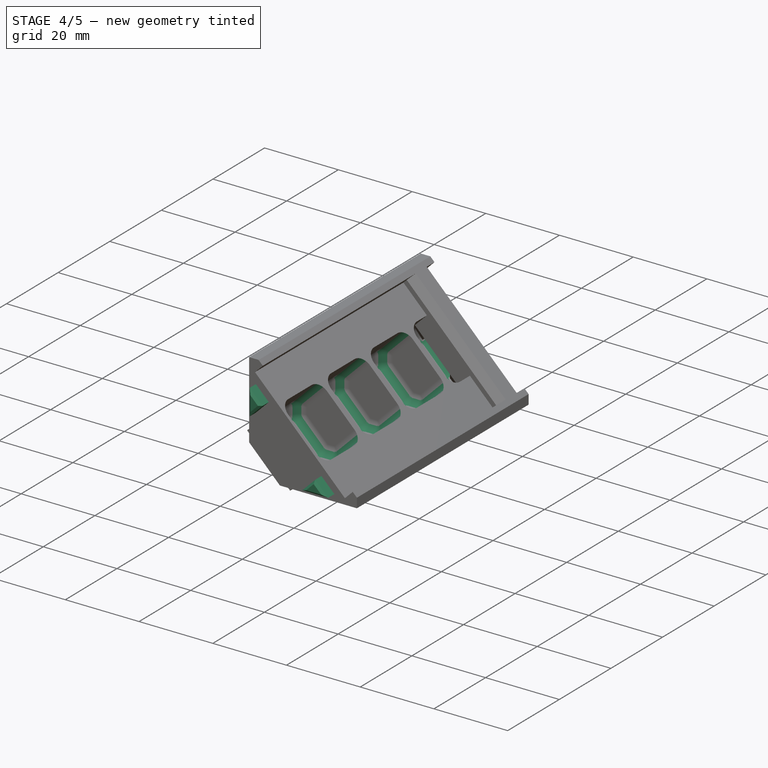
[diagram: stage 4 of 5 — iso view after this stage's code; geometry added in this stage tinted green]
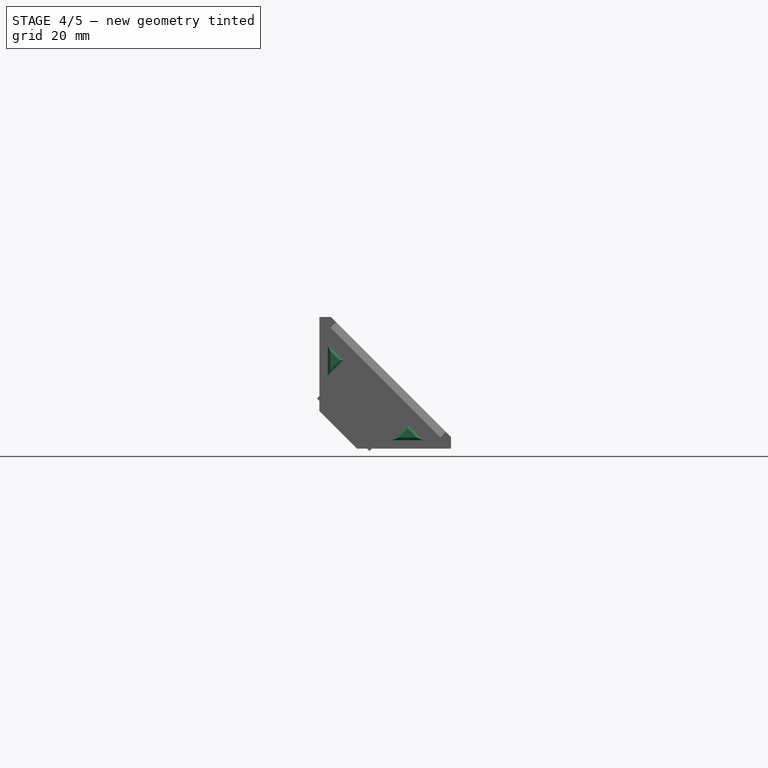
[diagram: stage 4 of 5 — front view after this stage's code; geometry added in this stage tinted green]
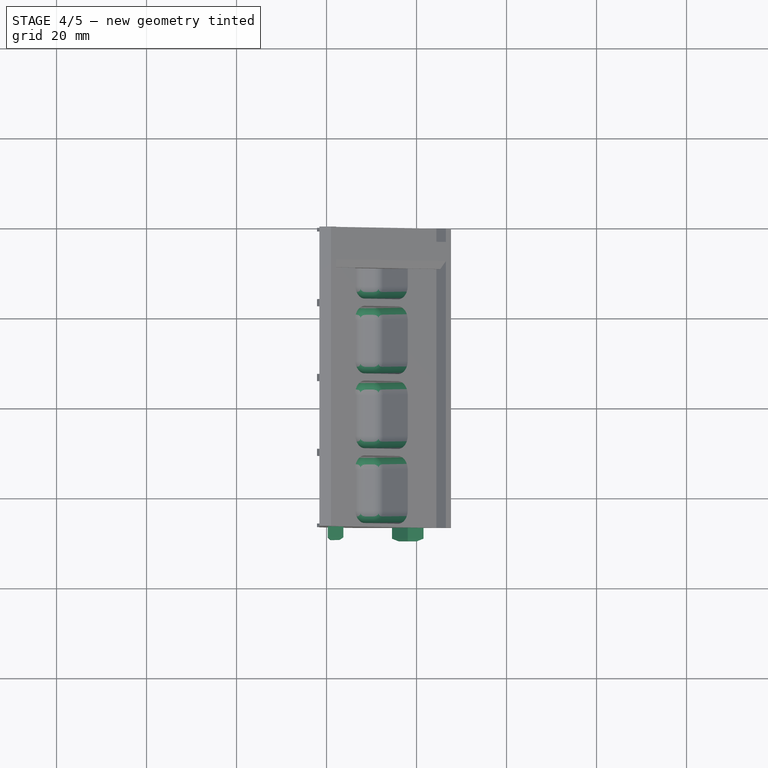
[diagram: stage 4 of 5 — top view after this stage's code; geometry added in this stage tinted green]
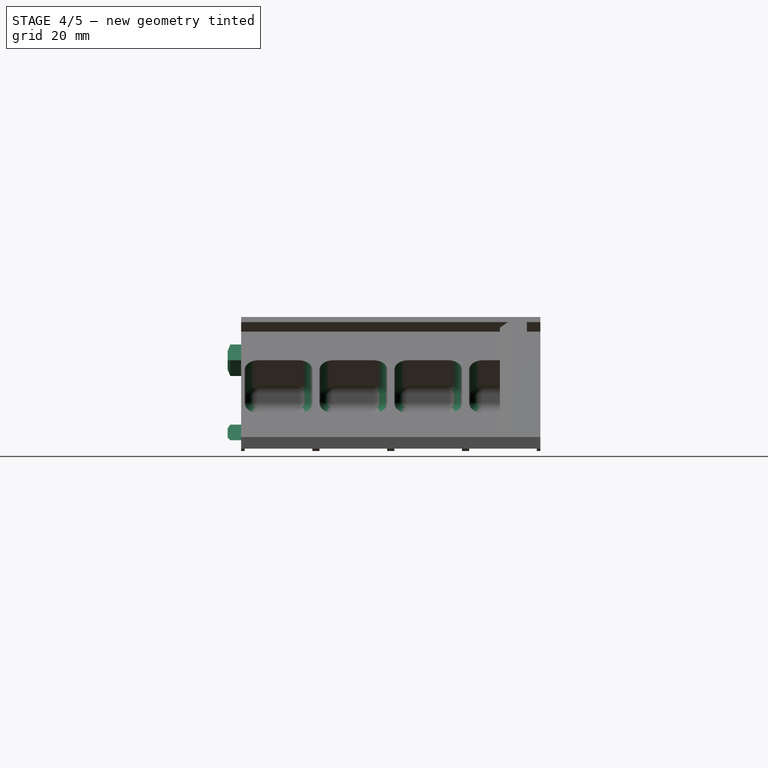
[diagram: stage 4 of 5 — right view after this stage's code; geometry added in this stage tinted green]
FEATURE [Sketcher::SketchObject] Sketch054
  ArcFitTolerance = 1e-06
  ExternalGeometry = -> [LinearPattern004]
  ExternalTypes = [0,0]
  FullyConstrained = true
  MakeInternals = false
  MapMode = 5
  Placement = pos=(3.71231,8e-16,3.71231) rot=(0.382683,0,0.92388;3.14159rad)
  _ExternalGeoVersion = 0
  sketch-geometry (8):
    g0: LineSegment StartX=-2.7 StartY=11.015 StartZ=0 EndX=-2.7 EndY=5.615 EndZ=0
    g1: LineSegment StartX=-2.7 StartY=5.615 StartZ=0 EndX=2.7 EndY=5.615 EndZ=0
    g2: LineSegment StartX=2.7 StartY=5.615 StartZ=0 EndX=2.7 EndY=11.015 EndZ=0
    g3: LineSegment StartX=2.7 StartY=11.015 StartZ=0 EndX=-2.7 EndY=11.015 EndZ=0
    g4: LineSegment [constr] StartX=-2.7 StartY=11.015 StartZ=0 EndX=-5.25 EndY=15.83 EndZ=0
    g5: LineSegment [constr] StartX=2.7 StartY=5.615 StartZ=0 EndX=5.25 EndY=0.8 EndZ=0
    g6: LineSegment [constr] StartX=2.7 StartY=11.015 StartZ=0 EndX=5.25 EndY=15.83 EndZ=0
    g7: LineSegment [constr] StartX=-2.7 StartY=5.615 StartZ=0 EndX=-5.25 EndY=0.8 EndZ=0
  constraints (20):
    c: Coincident(g0,g1)
    c: Coincident(g1,g2)
    c: Coincident(g2,g3)
    c: Coincident(g3,g0)
    c: Vertical(g0)
    c: Vertical(g2)
    c: Horizontal(g1)
    c: Horizontal(g3)
    c: DistanceX(g3,g3) = 5.4
    c: Equal(g3,g0)
    c: Coincident(g4,g0)
    c: Coincident(g5,g1)
    c: Coincident(g6,g2)
    c: Coincident(g7,g0)
    c: Equal(g4,g7)
    c: Coincident(g7,g-3)
    c: Coincident(g5,g-4)
    c: Coincident(g4,g-3)
    c: Coincident(g-4,g6)
    c: Equal(g7,g6)
FEATURE [PartDesign::Pocket] Pocket010  label="led-enclosure001"
  BaseFeature = -> LinearPattern004
  Direction = (-0.707107,0,-0.707107)
  Length = 5
  Length2 = 5
  Placement = pos=(0,0,0) rot=(1,0,0;1.5708rad)
  Profile = -> Sketch054
  ReferenceAxis = -> Sketch054 [N_Axis]
  Refine = true
  SideType = 0
  Suppressed = false
  Type = 1
  Type2 = 0
FEATURE [PartDesign::LinearPattern] LinearPattern003  label="led-enclosure-linear-pattern001"
  BaseFeature = -> Pocket010
  Direction = -> Y_Axis005
  Direction2 = -> Sketch054 [H_Axis]
  Length = 49.89
  Length2 = 100
  Mode = 1
  Mode2 = 0
  Occurrences = 4
  Occurrences2 = 1
  Offset = 16.63
  Offset2 = 100
  Originals = -> [Pocket010]
  Placement = pos=(0,0,0) rot=(1,0,0;1.5708rad)
  Refine = true
  Reversed = true
  Reversed2 = false
  SpacingPattern = [16.63]
  SpacingPattern2 = [0]
  Spacings = [-1,-1,-1]
  Suppressed = false
  TransformMode = 0
  expr: Occurrences = <<globals001>>.led_count
  expr: Offset = <<globals001>>.led_cell_width
FEATURE [PartDesign::Pocket] Pocket011  label="mating-hole001"
  BaseFeature = -> LinearPattern003
  Direction = (0,-1,-2e-16)
  Length = 4
  Length2 = 5
  Placement = pos=(0,0,0) rot=(1,0,0;1.5708rad)
  Profile = -> Sketch055
  ReferenceAxis = -> Sketch055 [N_Axis]
  Refine = true
  SideType = 0
  Suppressed = false
  Type = 0
  Type2 = 0
FEATURE [PartDesign::Pad] Pad022  label="mating-pin004"
  BaseFeature = -> Pocket011
  Direction = (0,-1,2e-16)
  Length = 3
  Length2 = 10
  Placement = pos=(0,0,0) rot=(1,0,0;1.5708rad)
  Profile = -> Sketch056
  ReferenceAxis = -> Sketch056 [N_Axis]
  Refine = true
  SideType = 0
  Suppressed = false
  Type = 0
  Type2 = 0
FEATURE [PartDesign::Chamfer] Chamfer009  label="mating-pin-chamfer004"
  Angle = 45
  Base = -> Pad022 [Edge205,Edge206,Edge203,Edge200,Edge199,Edge197]
  BaseFeature = -> Pad022
  ChamferType = 0
  FlipDirection = false
  Placement = pos=(0,0,0) rot=(1,0,0;1.5708rad)
  Refine = true
  Size = 0.6
  Size2 = 1
  SupportTransform = false
  Suppressed = false
  UseAllEdges = false
FEATURE [PartDesign::Chamfer] Chamfer010  label="mating-hole-chamfer001"
  Angle = 45
  Base = -> Chamfer009 [Edge142,Edge141,Edge143,Edge144,Edge145,Edge146]
  BaseFeature = -> Chamfer009
  ChamferType = 0
  FlipDirection = false
  Placement = pos=(0,0,0) rot=(1,0,0;1.5708rad)
  Refine = true
  Size = 0.8
  Size2 = 1
  SupportTransform = false
  Suppressed = false
  UseAllEdges = false
FEATURE [PartDesign::Fillet] Fillet001
  Base = -> Chamfer010 [Edge184,Edge185,Edge192,Edge287,Edge193,Edge183,Edge189,Edge188,Edge190,Edge191,Edge194,Edge288,Edge187,Edge186]
  BaseFeature = -> Chamfer010
  Placement = pos=(0,0,0) rot=(1,0,0;1.5708rad)
  Radius = 3
  Refine = true
  SupportTransform = false
  Suppressed = false
  UseAllEdges = false
FEATURE [PartDesign::LinearPattern] LinearPattern005
  BaseFeature = -> Fillet001
  Direction = -> Y_Axis005
  Direction2 = -> X_Axis005
  Length = 49.89
  Length2 = 100
  Mode = 0
  Mode2 = 0
  Occurrences = 4
  Occurrences2 = 1
  Offset = 16.63
  Offset2 = 100
  Originals = -> [Fillet001]
  Placement = pos=(0,0,0) rot=(1,0,0;1.5708rad)
  Refine = true
  Reversed = true
  Reversed2 = false
  SpacingPattern = [0]
  SpacingPattern2 = [0]
  Spacings = [-1,-1,-1]
  Suppressed = false
  TransformMode = 0
  expr: Length = <<globals001>>.led_cell_width * (<<globals001>>.led_count - 1)
  expr: Occurrences = <<globals001>>.led_count
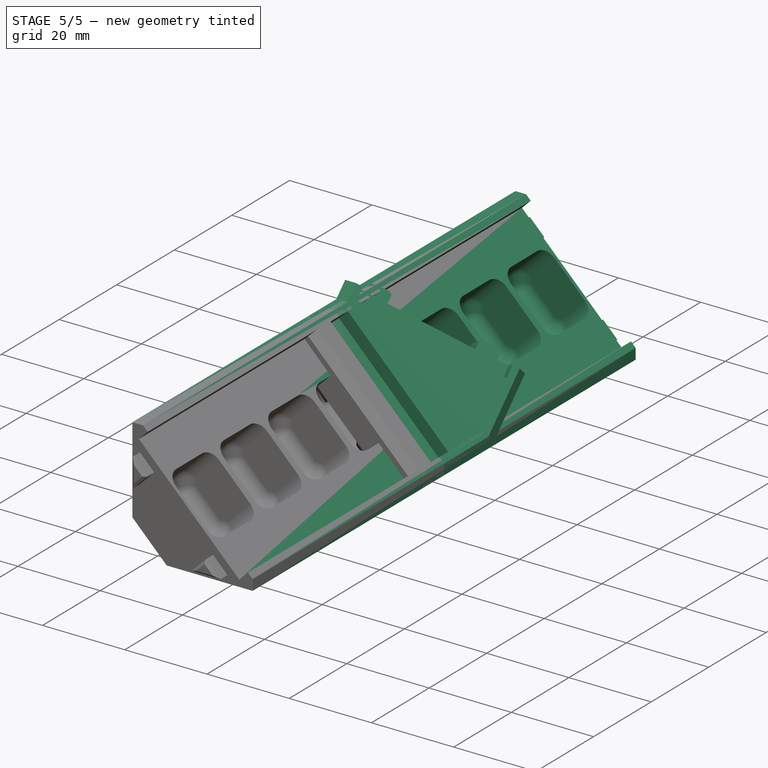
[diagram: stage 5 of 5 — iso view after this stage's code; geometry added in this stage tinted green]
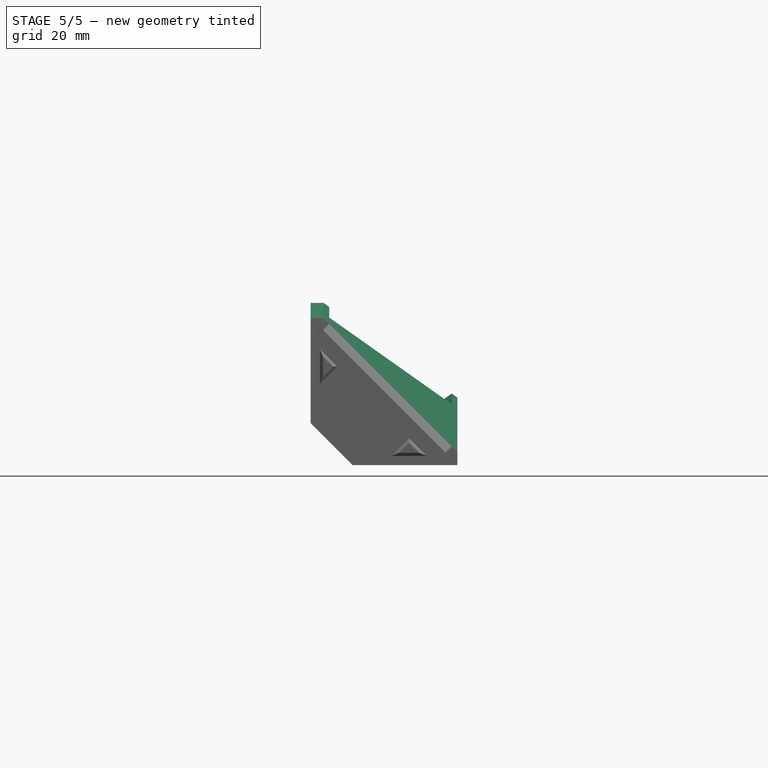
[diagram: stage 5 of 5 — front view after this stage's code; geometry added in this stage tinted green]
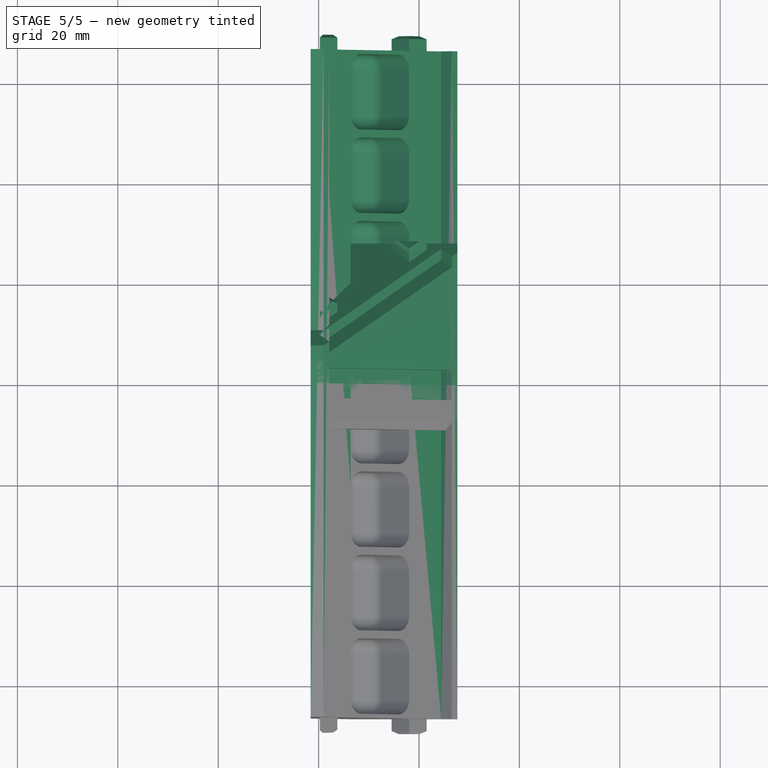
[diagram: stage 5 of 5 — top view after this stage's code; geometry added in this stage tinted green]
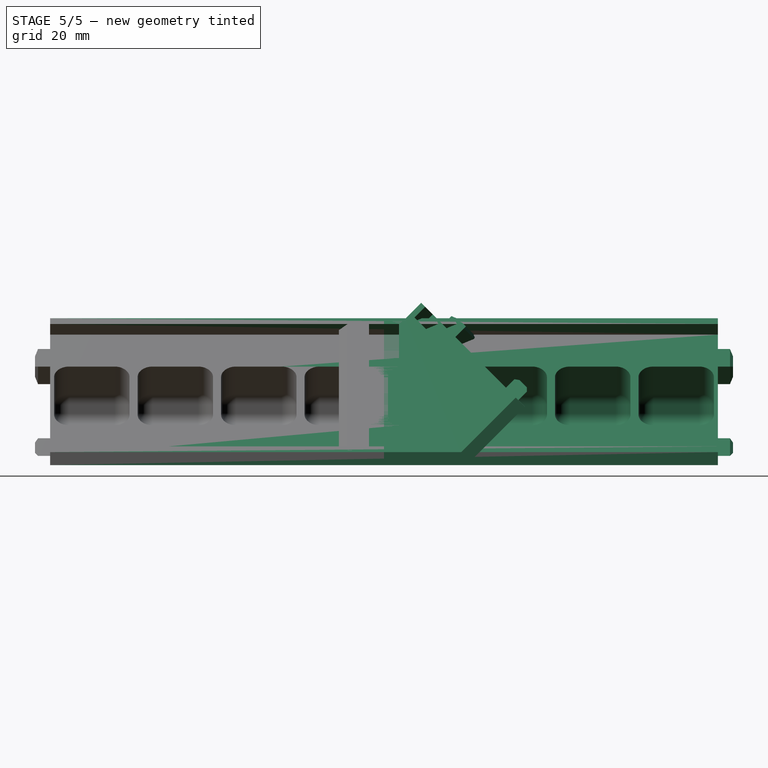
[diagram: stage 5 of 5 — right view after this stage's code; geometry added in this stage tinted green]
FEATURE [PartDesign::SubShapeBinder] Binder002  label="bracket-reference-binder001"
  BindCopyOnChange = 0
  BindMode = 0
  ClaimChildren = false
  Context = -> Body004 [Binder002.]
  Fuse = false
  MakeFace = true
  OffsetFill = false
  OffsetIntersection = false
  OffsetJoinType = 0
  OffsetOpenResult = false
  PartialLoad = false
  Refine = true
  Relative = true
  _Version = 2
FEATURE [App::Point] Origin009  label="Origin011"
  Role = Origin
FEATURE [Sketcher::SketchObject] Sketch031
  ArcFitTolerance = 1e-06
  AttachmentSupport = -> [Origin008]
  ExternalTypes = [0,0,0,0,0,0]
  FullyConstrained = false
  MakeInternals = false
  MapMode = 5
  Placement = pos=(0,0,0) rot=(1,0,0;1.5708rad)
  _ExternalGeoVersion = 1
  sketch-geometry (10):
    g0: LineSegment StartX=26.5165 StartY=2.12132 StartZ=0 EndX=24.3952 EndY=0 EndZ=0
    g1: LineSegment StartX=0 StartY=24.3952 StartZ=0 EndX=2.12132 EndY=26.5165 EndZ=0
    g2: LineSegment StartX=0.989949 StartY=27.6479 StartZ=0 EndX=-1.6 EndY=27.6479 EndZ=0
    g3: LineSegment StartX=6.76188 StartY=-1.6 StartZ=0 EndX=27.6479 EndY=-1.6 EndZ=0
    g4: LineSegment StartX=27.6479 StartY=-1.6 StartZ=0 EndX=27.6479 EndY=0.989949 EndZ=0
    g5: LineSegment StartX=27.6479 StartY=0.989949 StartZ=0 EndX=26.5165 EndY=2.12132 EndZ=0
    g6: LineSegment StartX=24.3952 StartY=0 StartZ=0 EndX=0 EndY=24.3952 EndZ=0
    g7: LineSegment StartX=2.12132 StartY=26.5165 StartZ=0 EndX=0.989949 EndY=27.6479 EndZ=0
    g8: LineSegment StartX=-1.6 StartY=27.6479 StartZ=0 EndX=-1.6 EndY=6.76188 EndZ=0
    g9: LineSegment StartX=-1.6 StartY=6.76188 StartZ=0 EndX=6.76188 EndY=-1.6 EndZ=0
  constraints (10):
    c: Coincident(g4,g3)
    c: Vertical(g4)
    c: Coincident(g5,g4)
    c: Coincident(g5,g0)
    c: Coincident(g6,g0)
    c: Coincident(g6,g1)
    c: Coincident(g7,g1)
    c: Coincident(g7,g2)
    c: Coincident(g8,g2)
    c: Vertical(g8)
FEATURE [Sketcher::SketchObject] Sketch033
  ArcFitTolerance = 1e-06
  AttachmentOffset = pos=(0,0,-248.7) rot=(0,0,1;0rad)
  ExternalTypes = [0]
  FullyConstrained = true
  MakeInternals = false
  MapMode = 5
  Placement = pos=(0,0,-5e-16) rot=(1,0,0;1.5708rad)
  _ExternalGeoVersion = 0
  expr: Constraints[14] = <<globals>>.inner_wall_thickness
  expr: Constraints[15] = <<globals>>.inner_wall_thickness
  expr: Constraints[16] = <<globals>>.inner_wall_thickness
  expr: Constraints[17] = <<globals>>.inner_wall_thickness
  expr: Constraints[30] = <<globals>>.gap * 5 / 4
  expr: Constraints[31] = <<globals>>.gap * 5 / 4
  expr: Constraints[32] = <<globals>>.gap * 5 / 4
  expr: Constraints[33] = <<globals>>.gap * 5 / 4
  expr: Constraints[34] = <<globals>>.gap * 5 / 4
  expr: Constraints[35] = <<globals>>.gap * 5 / 4
  sketch-geometry (12):
    g0: LineSegment [constr] StartX=0 StartY=22.1324 StartZ=0 EndX=4.10122 EndY=18.0312 EndZ=0
    g1: LineSegment [constr] StartX=4.10122 StartY=18.0312 StartZ=0 EndX=0 EndY=13.93 EndZ=0
    g2: LineSegment [constr] StartX=0 StartY=13.93 StartZ=0 EndX=0 EndY=22.1324 EndZ=0
    g3: LineSegment [constr] StartX=13.93 StartY=0 StartZ=0 EndX=18.0312 EndY=4.10122 EndZ=0
    g4: LineSegment [constr] StartX=18.0312 StartY=4.10122 StartZ=0 EndX=22.1324 EndY=0 EndZ=0
    g5: LineSegment [constr] StartX=22.1324 StartY=0 StartZ=0 EndX=13.93 EndY=0 EndZ=0
    g6: LineSegment StartX=0.25 StartY=21.5289 StartZ=0 EndX=0.25 EndY=14.5336 EndZ=0
    g7: LineSegment StartX=0.25 StartY=14.5336 StartZ=0 EndX=3.74767 EndY=18.0312 EndZ=0
    g8: LineSegment StartX=3.74767 StartY=18.0312 StartZ=0 EndX=0.25 EndY=21.5289 EndZ=0
    g9: LineSegment StartX=14.5336 StartY=0.25 StartZ=0 EndX=18.0312 EndY=3.74767 EndZ=0
    g10: LineSegment StartX=18.0312 StartY=3.74767 StartZ=0 EndX=21.5289 EndY=0.25 EndZ=0
    g11: LineSegment StartX=21.5289 StartY=0.25 StartZ=0 EndX=14.5336 EndY=0.25 EndZ=0
  constraints (36):
    c: PointOnObject(g0,g-2)
    c: Coincident(g0,g1)
    c: Coincident(g1,g2)
    c: Coincident(g2,g0)
    c: Vertical(g2)
    c: PointOnObject(g3,g-1)
    c: Coincident(g3,g4)
    c: PointOnObject(g4,g-1)
    c: Coincident(g4,g5)
    c: Coincident(g5,g3)
    c: Parallel(g-3,g0)
    c: Parallel(g-4,g1)
    c: Parallel(g3,g-5)
    c: Parallel(g4,g-6)
    c: Distance(g-3,g0) = 1.6
    c: Distance(g-4,g1) = 1.6
    c: Distance(g-5,g3) = 1.6
    c: Distance(g-6,g4) = 1.6
    c: Vertical(g6)
    c: Coincident(g6,g7)
    c: Coincident(g7,g8)
    c: Coincident(g8,g6)
    c: Coincident(g9,g10)
    c: Coincident(g10,g11)
    c: Coincident(g11,g9)
    c: Horizontal(g11)
    c: Parallel(g8,g0)
    c: Parallel(g7,g1)
    c: Parallel(g10,g4)
    c: Parallel(g9,g3)
    c: Distance(g0,g8) = 0.25
    c: Distance(g2,g6) = 0.25
    c: Distance(g1,g7) = 0.25
    c: Distance(g3,g9) = 0.25
    c: Distance(g4,g10) = 0.25
    c: Distance(g5,g11) = 0.25
FEATURE [PartDesign::Plane] DatumPlane
  AttachmentOffset = pos=(0,20,0) rot=(1,0,1;-0.392699rad)
  Length = 64.9689
  MapMode = 5
  Placement = pos=(0,4,28.461) rot=(10000,-1,0;-1.1781rad)
  ResizeMode = 0
  Width = 84.2491
FEATURE [PartDesign::Pad] Pad012  label="endcap-shape002"
  Direction = (0,-1,2e-16)
  Length = 200
  Length2 = 10
  Profile = -> Sketch031
  ReferenceAxis = -> Sketch031 [N_Axis]
  Refine = true
  Reversed = true
  SideType = 0
  Suppressed = false
  Type = 3
  Type2 = 0
  UpToFace = -> DatumPlane [Plane]
FEATURE [Sketcher::SketchObject] Sketch051
  ArcFitTolerance = 1e-06
  AttachmentOffset = pos=(0,0,-3) rot=(0,0,1;0rad)
  AttachmentSupport = -> [Origin008]
  ExternalGeometry = -> [Pad012]
  ExternalTypes = [0,0,0]
  FullyConstrained = true
  MakeInternals = false
  MapMode = 5
  Placement = pos=(0,3,-7e-16) rot=(1,0,0;1.5708rad)
  _ExternalGeoVersion = 1
  sketch-geometry (4):
    g0: LineSegment StartX=2.12132 StartY=26.5165 StartZ=0 EndX=0 EndY=24.3952 EndZ=0
    g1: LineSegment StartX=0 StartY=24.3952 StartZ=0 EndX=24.3952 EndY=0 EndZ=0
    g2: LineSegment StartX=24.3952 StartY=0 StartZ=0 EndX=26.5165 EndY=2.12132 EndZ=0
    g3: LineSegment StartX=26.5165 StartY=2.12132 StartZ=0 EndX=2.12132 EndY=26.5165 EndZ=0
  constraints (8):
    c: Coincident(g-3,g0)
    c: Coincident(g0,g-4)
    c: Coincident(g0,g1)
    c: Coincident(g1,g-5)
    c: Coincident(g1,g2)
    c: Coincident(g2,g-5)
    c: Coincident(g2,g3)
    c: Coincident(g3,g0)
FEATURE [PartDesign::Pad] Pad019
  BaseFeature = -> Pad012
  Direction = (0,-1,0)
  Length = 10
  Length2 = 10
  Profile = -> Sketch051
  ReferenceAxis = -> Sketch051 [N_Axis]
  Refine = true
  Reversed = true
  SideType = 0
  Suppressed = false
  Type = 5
  Type2 = 0
  UpToShape = -> [DatumPlane]
FEATURE [PartDesign::Pad] Pad014  label="mating-pin003"
  BaseFeature = -> Pad019
  Direction = (0,-1,0)
  Length = 3
  Length2 = 10
  Profile = -> Sketch033
  ReferenceAxis = -> Sketch033 [N_Axis]
  Refine = true
  SideType = 0
  Suppressed = false
  Type = 0
  Type2 = 0
FEATURE [PartDesign::Chamfer] Chamfer006  label="mating-pin-chamfer003"
  Angle = 45
  Base = -> Pad014 [Edge39,Edge41,Edge47,Edge42,Edge45,Edge48]
  BaseFeature = -> Pad014
  ChamferType = 0
  FlipDirection = false
  Refine = true
  Size = 0.6
  Size2 = 1
  SupportTransform = false
  Suppressed = false
  UseAllEdges = false
FEATURE [PartDesign::Mirrored] Mirrored
  BaseFeature = -> Chamfer006
  MirrorPlane = -> DatumPlane
  Originals = -> [Pad012,Pad014,Chamfer006,Pad019]
  Refine = true
  Suppressed = false
  TransformMode = 0
FEATURE [Sketcher::SketchObject] Sketch058
  ArcFitTolerance = 1e-06
  AttachmentSupport = -> [Origin010]
  ExternalTypes = [0,0,0,0]
  FullyConstrained = true
  MakeInternals = false
  MapMode = 5
  Placement = pos=(0,0,0) rot=(1,0,0;1.5708rad)
  _ExternalGeoVersion = 1
  sketch-geometry (6):
    g0: LineSegment StartX=-1.6 StartY=10.0673 StartZ=0 EndX=-1.6 EndY=9.02462 EndZ=0
    g1: LineSegment StartX=-1.6 StartY=9.02462 StartZ=0 EndX=-2.12132 EndY=9.54594 EndZ=0
    g2: LineSegment StartX=-2.12132 StartY=9.54594 StartZ=0 EndX=-1.6 EndY=10.0673 EndZ=0
    g3: LineSegment StartX=9.02462 StartY=-1.6 StartZ=0 EndX=10.0673 EndY=-1.6 EndZ=0
    g4: LineSegment StartX=10.0673 StartY=-1.6 StartZ=0 EndX=9.54594 EndY=-2.12132 EndZ=0
    g5: LineSegment StartX=9.54594 StartY=-2.12132 StartZ=0 EndX=9.02462 EndY=-1.6 EndZ=0
  constraints (12):
    c: Coincident(g-3,g0)
    c: Coincident(g0,g-4)
    c: Coincident(g0,g1)
    c: Coincident(g1,g-4)
    c: Coincident(g1,g2)
    c: Coincident(g2,g0)
    c: Coincident(g-5,g3)
    c: Coincident(g3,g-6)
    c: Coincident(g3,g4)
    c: Coincident(g4,g-6)
    c: Coincident(g4,g5)
    c: Coincident(g5,g3)
FEATURE [PartDesign::Pocket] Pocket012
  BaseFeature = -> LinearPattern005
  Direction = (0,1,-2e-16)
  Length = 81
  Length2 = 5
  Placement = pos=(0,0,0) rot=(1,0,0;1.5708rad)
  Profile = -> Sketch058
  ReferenceAxis = -> Sketch058 [N_Axis]
  Refine = true
  Reversed = true
  SideType = 0
  Suppressed = false
  Type = 1
  Type2 = 0
FEATURE [Spreadsheet::Sheet] Spreadsheet001  label="globals001"
  cells = A1='Inner Wall Thickness; B1(inner_wall_thickness)==1.6 mm; A2='Outer Wall Thickness; B2(outer_wall_thickness)==3.2 mm; A3='Gap; B3(gap)==0.2 mm; A4='LED Cell Width; B4(led_cell_width)==16.63 mm; A5='LED Count; B5(led_count)=4
FEATURE [PartDesign::Mirrored] Mirrored001
  BaseFeature = -> Pocket012
  MirrorPlane = -> XZ_Plane005
  Placement = pos=(0,0,0) rot=(1,0,0;1.5708rad)
  Refine = true
  Suppressed = false
  TransformMode = 1
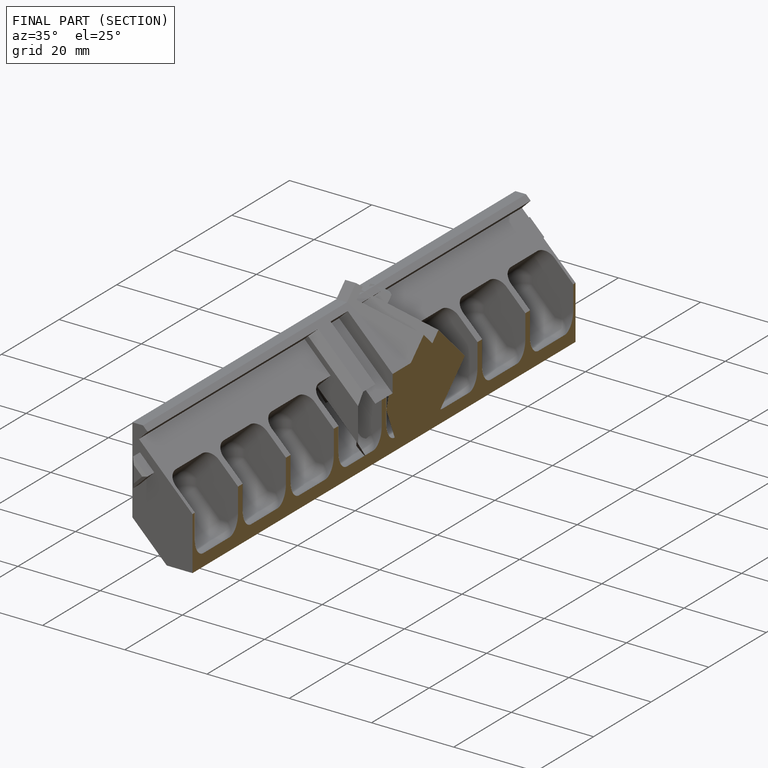
[diagram: finished part — half-section view (interior)]
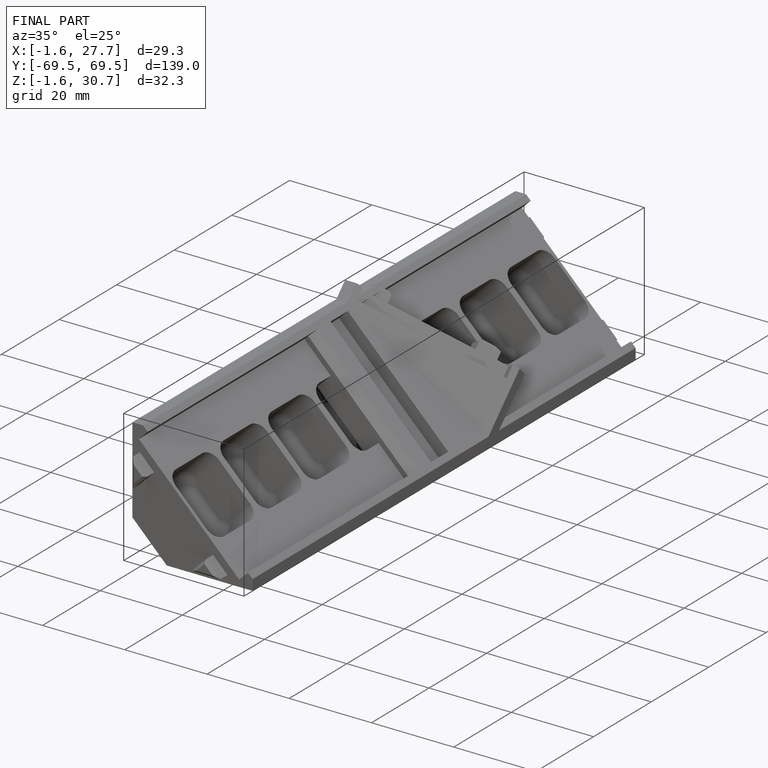
[diagram: finished part — iso view with bounding-box wireframe]
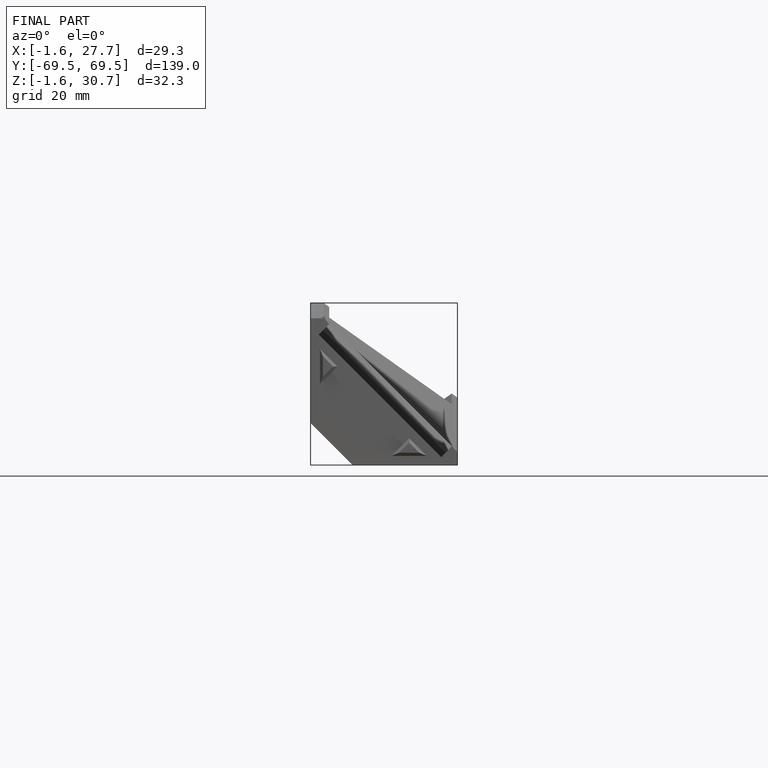
[diagram: finished part — front view with bounding-box wireframe]
